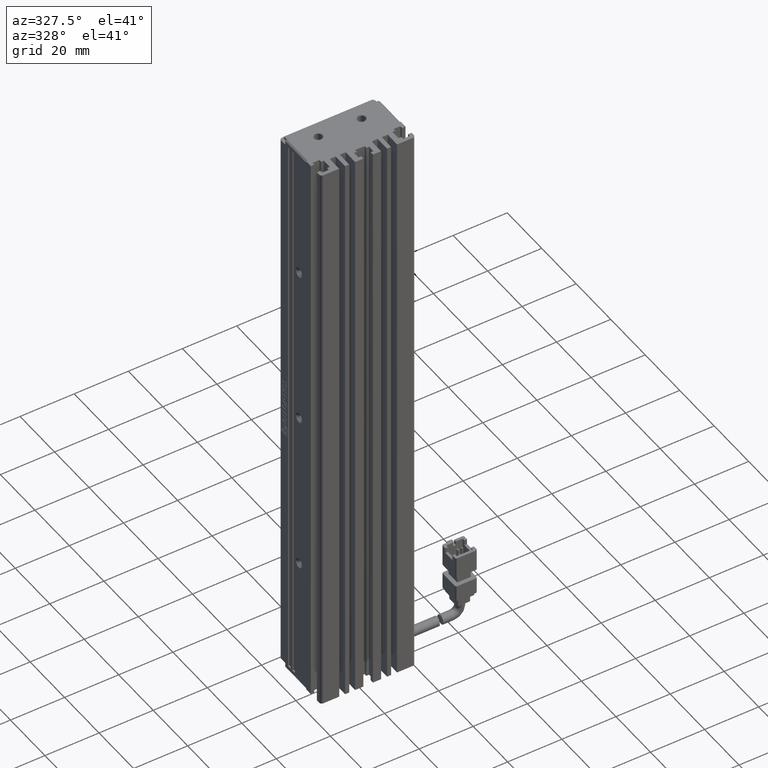
[diagram: clean part render]
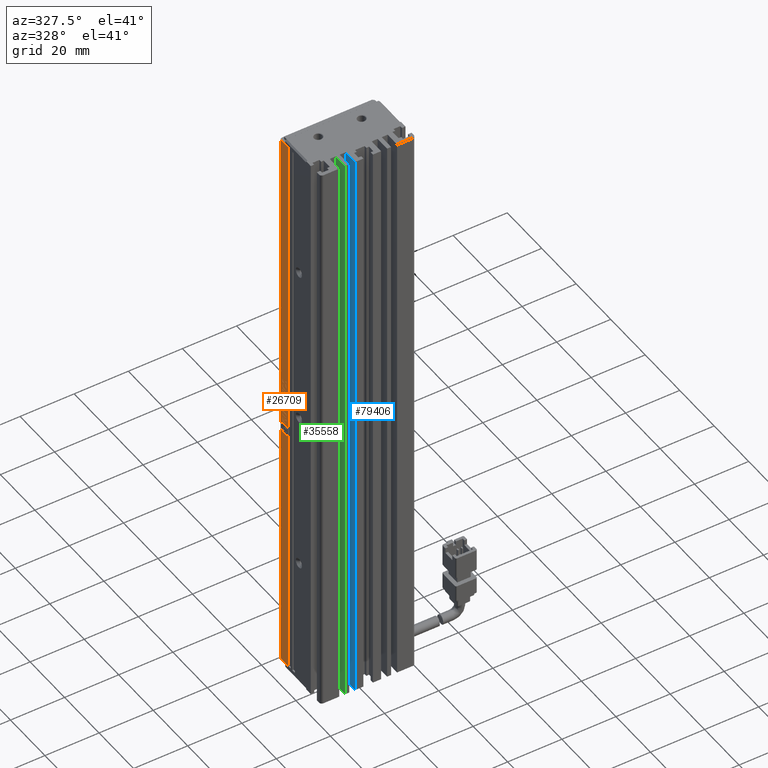
[diagram: same view with three faces highlighted in distinct colors, each labeled with its STEP entity id]
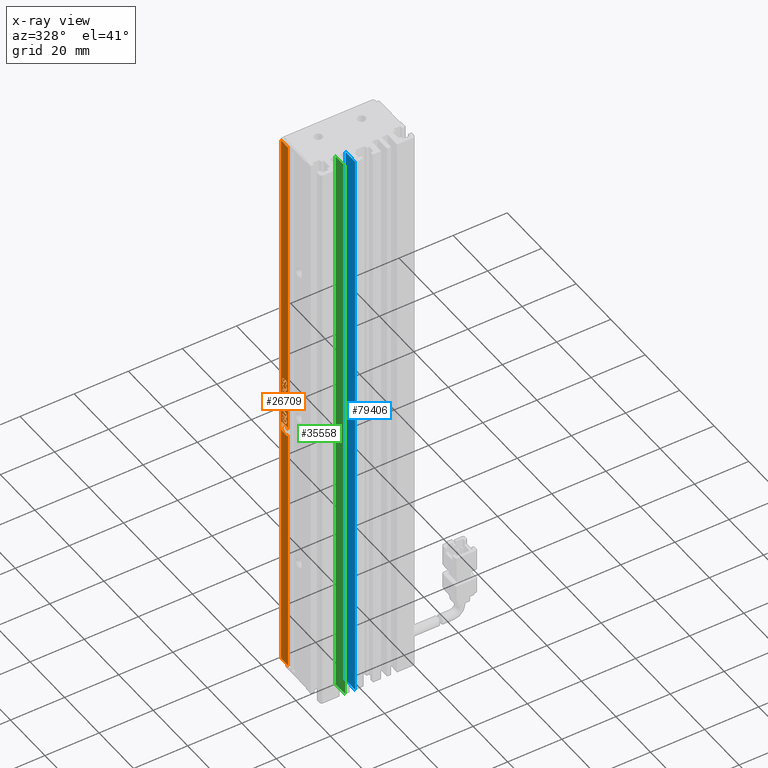
[diagram: x-ray of the same camera — body ghosted, the three highlighted faces saturated]
A machine part, auxiliary view with three faces highlighted in distinct colors.
The next image is the same camera in x-ray (body ghosted, the three faces saturated) — at least one of them is partly hidden behind the body in this view.
Their STEP definitions:

[orange] entity #26709 — the highlighted planar face has unit normal (-1, 0, 0).
#43 = VECTOR ( 'NONE', #69789, 1000.000000000000000 ) ;
#59 = EDGE_CURVE ( 'NONE', #26377, #69647, #48499, .T. ) ;
#383 = CARTESIAN_POINT ( 'NONE',  ( 23.42537974683542100, 32.80993697706704600, -117.4060518617324200 ) ) ;
#629 = CARTESIAN_POINT ( 'NONE',  ( 23.42537974683542100, 33.90313621518245000, -124.4911980244126100 ) ) ;
#646 = CARTESIAN_POINT ( 'NONE',  ( 23.42537974683542100, 30.69365790729960300, -122.0197619753073300 ) ) ;
#749 = CARTESIAN_POINT ( 'NONE',  ( 23.42537974683542500, 34.99073232304837700, -8.000000000000007100 ) ) ;
#1005 = DIRECTION ( 'NONE',  ( 0.0000000000000000000, 0.0000000000000000000, 1.000000000000000000 ) ) ;
#1037 = B_SPLINE_CURVE_WITH_KNOTS ( 'NONE', 3,
 ( #38617, #66763, #24871, #45687 ),
 .UNSPECIFIED., .F., .F.,
 ( 4, 4 ),
 ( 3.000000000000000000, 4.000000000000000000 ),
 .UNSPECIFIED. ) ;
#1072 = ORIENTED_EDGE ( 'NONE', *, *, #58591, .F. ) ;
#1168 = CARTESIAN_POINT ( 'NONE',  ( 23.42537974683542100, 33.24016953520655400, -118.5485613263079200 ) ) ;
#1196 = CARTESIAN_POINT ( 'NONE',  ( 23.42537974683542100, 31.98435558171818700, -109.5125283355021300 ) ) ;
#1227 = CARTESIAN_POINT ( 'NONE',  ( 23.42537974683542100, 32.79830907009025500, -109.4764277405858100 ) ) ;
#1234 = LINE ( 'NONE', #72954, #27483 ) ;
#1447 = EDGE_CURVE ( 'NONE', #73920, #46582, #73014, .T. ) ;
#1837 = CARTESIAN_POINT ( 'NONE',  ( 23.42537974683542100, 32.92621604683451200, -122.0523471564863300 ) ) ;
#1927 = CARTESIAN_POINT ( 'NONE',  ( 23.42537974683542100, 32.92621604683451200, -122.0523471564863300 ) ) ;
#1933 = CARTESIAN_POINT ( 'NONE',  ( 23.42537974683542100, 31.03086720962521700, -119.6008193035928400 ) ) ;
#2055 = ORIENTED_EDGE ( 'NONE', *, *, #59, .F. ) ;
#2252 = VERTEX_POINT ( 'NONE', #15879 ) ;
#2388 = ORIENTED_EDGE ( 'NONE', *, *, #70909, .F. ) ;
#2472 = CARTESIAN_POINT ( 'NONE',  ( 23.42537974683542100, 30.83319279102058600, -107.6288074052695300 ) ) ;
#2511 = DIRECTION ( 'NONE',  ( -0.0000000000000000000, -1.000000000000000000, -0.0000000000000000000 ) ) ;
#2625 = CARTESIAN_POINT ( 'NONE',  ( 23.42537974683542100, 33.24016953520655400, -113.7865277946691400 ) ) ;
#2776 = VERTEX_POINT ( 'NONE', #22461 ) ;
#2849 = CARTESIAN_POINT ( 'NONE',  ( 23.42537974683542100, 32.44947186078796600, -107.3646781462105400 ) ) ;
#2855 = CARTESIAN_POINT ( 'NONE',  ( 23.42537974683542100, 30.69365790729960300, -106.1064304447502200 ) ) ;
#2967 = DIRECTION ( 'NONE',  ( -0.0000000000000000000, 1.000000000000000000, -0.0000000000000000000 ) ) ;
#3023 = VERTEX_POINT ( 'NONE', #83650 ) ;
#3045 = CARTESIAN_POINT ( 'NONE',  ( 23.42537974683542100, 31.78668116311355600, -106.1280637600558500 ) ) ;
#3171 = ORIENTED_EDGE ( 'NONE', *, *, #63918, .F. ) ;
#3211 = B_SPLINE_CURVE_WITH_KNOTS ( 'NONE', 3,
 ( #15456, #29602, #64448, #78826 ),
 .UNSPECIFIED., .F., .F.,
 ( 4, 4 ),
 ( 11.00000000000000000, 12.00000000000000000 ),
 .UNSPECIFIED. ) ;
#3354 = ORIENTED_EDGE ( 'NONE', *, *, #46418, .F. ) ;
#3392 = VECTOR ( 'NONE', #69041, 1000.000000000000000 ) ;
#3616 = CARTESIAN_POINT ( 'NONE',  ( 23.42537974683542100, 30.69365790729960300, -121.4774418022407300 ) ) ;
#3701 = CARTESIAN_POINT ( 'NONE',  ( 23.42537974683542100, 33.27505325613680000, -108.3952352040796800 ) ) ;
#3837 = ORIENTED_EDGE ( 'NONE', *, *, #31578, .F. ) ;
#3907 = VERTEX_POINT ( 'NONE', #24247 ) ;
#4017 = CARTESIAN_POINT ( 'NONE',  ( 23.42537974683542100, 31.97272767474145600, -117.4421524566485100 ) ) ;
#4373 = CARTESIAN_POINT ( 'NONE',  ( 23.42537974683542100, 30.17471088155887000, -124.4911980244126100 ) ) ;
#4424 = B_SPLINE_CURVE_WITH_KNOTS ( 'NONE', 3,
 ( #72009, #44115, #30086, #1933 ),
 .UNSPECIFIED., .F., .F.,
 ( 4, 4 ),
 ( 4.000000000000000000, 5.000000000000000000 ),
 .UNSPECIFIED. ) ;
#4548 = CARTESIAN_POINT ( 'NONE',  ( 23.42537974683542100, 31.58900674450892200, -107.4189642468053600 ) ) ;
#4603 = CARTESIAN_POINT ( 'NONE',  ( 23.42537974683542100, 31.97272767474145600, -115.1207625161401800 ) ) ;
#4752 = DIRECTION ( 'NONE',  ( -0.0000000000000000000, -1.000000000000000000, -0.0000000000000000000 ) ) ;
#4998 = EDGE_CURVE ( 'NONE', #62750, #57622, #4424, .T. ) ;
#5161 = CARTESIAN_POINT ( 'NONE',  ( 23.42537974683542100, 31.01525066013898500, -107.9433693306345800 ) ) ;
#5482 = AXIS2_PLACEMENT_3D ( 'NONE', #42587, #35615, #1005 ) ;
#5519 = ORIENTED_EDGE ( 'NONE', *, *, #7941, .F. ) ;
#5719 = FACE_BOUND ( 'NONE', #51348, .T. ) ;
#5852 = CARTESIAN_POINT ( 'NONE',  ( 23.42537974683542100, 31.79830907009028400, -120.6530096767676200 ) ) ;
#5943 = CARTESIAN_POINT ( 'NONE',  ( 23.42537974683542100, 31.02305893488210100, -121.7342022132737500 ) ) ;
#5961 = EDGE_LOOP ( 'NONE', ( #11075, #75421, #47572, #41546 ) ) ;
#6158 = EDGE_CURVE ( 'NONE', #48704, #26746, #39579, .T. ) ;
#6180 = VECTOR ( 'NONE', #48422, 1000.000000000000000 ) ;
#6209 = EDGE_CURVE ( 'NONE', #73861, #80208, #47598, .T. ) ;
#6281 = B_SPLINE_CURVE_WITH_KNOTS ( 'NONE', 3,
 ( #74990, #38796, #32705, #11572 ),
 .UNSPECIFIED., .F., .F.,
 ( 4, 4 ),
 ( 13.00000000000000000, 14.00000000000000000 ),
 .UNSPECIFIED. ) ;
#6292 = CARTESIAN_POINT ( 'NONE',  ( 23.42537974683542100, 32.44947186078796600, -107.8745483463186600 ) ) ;
#6429 = VECTOR ( 'NONE', #47813, 1000.000000000000000 ) ;
#6817 = VECTOR ( 'NONE', #47979, 1000.000000000000000 ) ;
#7012 = CARTESIAN_POINT ( 'NONE',  ( 23.42537974683542100, 31.40296023288102100, -105.6833639223057000 ) ) ;
#7150 = CARTESIAN_POINT ( 'NONE',  ( 23.42537974683542100, 33.24016953520655400, -120.1323228190066000 ) ) ;
#7223 = EDGE_CURVE ( 'NONE', #23359, #55443, #26135, .T. ) ;
#7255 = DIRECTION ( 'NONE',  ( -0.0000000000000000000, -1.000000000000000000, -0.0000000000000000000 ) ) ;
#7261 = LINE ( 'NONE', #46330, #56377 ) ;
#7604 = VERTEX_POINT ( 'NONE', #70491 ) ;
#7647 = LINE ( 'NONE', #78228, #21781 ) ;
#7779 = EDGE_CURVE ( 'NONE', #53387, #74927, #18453, .T. ) ;
#7941 = EDGE_CURVE ( 'NONE', #36956, #62260, #58871, .T. ) ;
#8097 = EDGE_CURVE ( 'NONE', #26793, #23359, #3211, .T. ) ;
#8307 = CARTESIAN_POINT ( 'NONE',  ( 23.42537974683542100, 32.54249511660192000, -121.0001567833117200 ) ) ;
#8536 = CARTESIAN_POINT ( 'NONE',  ( 23.42537974683542100, 31.98435558171818700, -122.6923552689798100 ) ) ;
#8830 = CARTESIAN_POINT ( 'NONE',  ( 23.42537974683542100, 30.17471088155887000, -126.8601066235564600 ) ) ;
#8908 = LINE ( 'NONE', #18324, #29761 ) ;
#8929 = ORIENTED_EDGE ( 'NONE', *, *, #44752, .T. ) ;
#9046 = ORIENTED_EDGE ( 'NONE', *, *, #65578, .F. ) ;
#9052 = ORIENTED_EDGE ( 'NONE', *, *, #44742, .F. ) ;
#9125 = CARTESIAN_POINT ( 'NONE',  ( 23.42537974683542100, 32.57339019502266800, -122.6706543495638600 ) ) ;
#9247 = VERTEX_POINT ( 'NONE', #18913 ) ;
#9388 = CARTESIAN_POINT ( 'NONE',  ( 23.42537974683542100, 32.49598348869494700, -105.2168955610293000 ) ) ;
#9417 = CARTESIAN_POINT ( 'NONE',  ( 23.42537974683542100, 31.98435558171818700, -109.5125283355021300 ) ) ;
#9481 = EDGE_CURVE ( 'NONE', #88037, #9247, #45454, .T. ) ;
#9557 = ORIENTED_EDGE ( 'NONE', *, *, #1447, .F. ) ;
#9608 = ORIENTED_EDGE ( 'NONE', *, *, #51436, .F. ) ;
#9709 = ORIENTED_EDGE ( 'NONE', *, *, #72241, .F. ) ;
#9919 = CARTESIAN_POINT ( 'NONE',  ( 23.42537974683542100, 31.83319279102058600, -122.1716684112184600 ) ) ;
#9978 = ORIENTED_EDGE ( 'NONE', *, *, #66589, .F. ) ;
#10016 = FACE_BOUND ( 'NONE', #87984, .T. ) ;
#10065 = CARTESIAN_POINT ( 'NONE',  ( 23.42537974683542100, 33.27505325613680000, -122.0523471564863300 ) ) ;
#10095 = CARTESIAN_POINT ( 'NONE',  ( 23.42537974683542100, 33.24016953520655400, -110.6298890710347700 ) ) ;
#10218 = CARTESIAN_POINT ( 'NONE',  ( 23.42537974683542100, 30.74016953520663300, -111.9207219536739200 ) ) ;
#10263 = CARTESIAN_POINT ( 'NONE',  ( 23.42537974683542100, 32.80594833455759800, -106.5259139493473600 ) ) ;
#10264 = VECTOR ( 'NONE', #53163, 1000.000000000000000 ) ;
#10299 = CARTESIAN_POINT ( 'NONE',  ( 23.42537974683542100, 32.17040209334609100, -107.1008193035928900 ) ) ;
#10371 = CARTESIAN_POINT ( 'NONE',  ( 23.42537974683542100, 31.15877418636935700, -123.1842427757400300 ) ) ;
#10479 = CARTESIAN_POINT ( 'NONE',  ( 23.42537974683542100, 32.76724498139368100, -105.7955191413429900 ) ) ;
#10917 = CARTESIAN_POINT ( 'NONE',  ( 23.42537974683542100, 31.03086720962521700, -108.2542130299314400 ) ) ;
#11075 = ORIENTED_EDGE ( 'NONE', *, *, #50306, .F. ) ;
#11268 = CARTESIAN_POINT ( 'NONE',  ( 23.42537974683542100, 31.61226255846238300, -114.2855137330142100 ) ) ;
#11491 = CARTESIAN_POINT ( 'NONE',  ( 23.42537974683542100, 32.44947186078796600, -107.8745483463186600 ) ) ;
#11572 = CARTESIAN_POINT ( 'NONE',  ( 23.42537974683542100, 30.69365790729960300, -106.1064304447502200 ) ) ;
#11591 = CARTESIAN_POINT ( 'NONE',  ( 23.42537974683542100, 30.72472199599617700, -122.7863925864485300 ) ) ;
#11712 = LINE ( 'NONE', #749, #75279 ) ;
#11779 = VERTEX_POINT ( 'NONE', #4373 ) ;
#11877 = CARTESIAN_POINT ( 'NONE',  ( 23.42537974683542100, 31.22073335348673200, -106.8368928568648800 ) ) ;
#12258 = CARTESIAN_POINT ( 'NONE',  ( 23.42537974683542100, 31.96109976776472500, -108.9810248200882500 ) ) ;
#12398 = CARTESIAN_POINT ( 'NONE',  ( 23.42537974683542100, 31.38734368339478900, -122.6706543495638600 ) ) ;
#12572 = CARTESIAN_POINT ( 'NONE',  ( 23.42537974683542100, 31.06176228804590500, -108.7243996172759200 ) ) ;
#12994 = CARTESIAN_POINT ( 'NONE',  ( 23.42537974683542100, 31.03086720962521700, -122.0089453176544900 ) ) ;
#13139 = CARTESIAN_POINT ( 'NONE',  ( 23.42537974683542100, 32.22854162822984800, -106.1064304447502200 ) ) ;
#13276 = EDGE_CURVE ( 'NONE', #53294, #75751, #88304, .T. ) ;
#13296 = CARTESIAN_POINT ( 'NONE',  ( 23.42537974683542100, 30.74016953520663300, -114.7953163290120800 ) ) ;
#13381 = CARTESIAN_POINT ( 'NONE',  ( 23.42537974683542100, 31.59664600897626500, -113.2080394225761200 ) ) ;
#13445 = DIRECTION ( 'NONE',  ( -0.0000000000000000000, -0.0000000000000000000, 1.000000000000000000 ) ) ;
#13504 = LINE ( 'NONE', #66719, #78161 ) ;
#13533 = CARTESIAN_POINT ( 'NONE',  ( 23.42537974683542100, 31.11226255846243700, -107.4189642468053600 ) ) ;
#13559 = CARTESIAN_POINT ( 'NONE',  ( 23.42537974683542100, 32.89133232590420900, -112.6908679785522100 ) ) ;
#13637 = VERTEX_POINT ( 'NONE', #31666 ) ;
#13711 = CARTESIAN_POINT ( 'NONE',  ( 23.42537974683542100, 32.89133232590420900, -110.6298890710347700 ) ) ;
#13720 = CARTESIAN_POINT ( 'NONE',  ( 23.42537974683542100, 33.90313621518245000, -126.8601066235564600 ) ) ;
#13801 = CARTESIAN_POINT ( 'NONE',  ( 23.42537974683542100, 31.97272767474145600, -117.4421524566485100 ) ) ;
#13890 = ORIENTED_EDGE ( 'NONE', *, *, #27111, .F. ) ;
#13905 = EDGE_CURVE ( 'NONE', #73614, #21013, #64866, .T. ) ;
#13941 = CARTESIAN_POINT ( 'NONE',  ( 23.42537974683542100, 31.03086720962521700, -118.5124607313916000 ) ) ;
#14025 = CARTESIAN_POINT ( 'NONE',  ( 23.42537974683542100, 33.67213886008198600, -123.8114702828415700 ) ) ;
#14104 = CARTESIAN_POINT ( 'NONE',  ( 23.42537974683542100, 33.23618089269710700, -122.7972768482116200 ) ) ;
#14272 = CARTESIAN_POINT ( 'NONE',  ( 23.42537974683542100, 33.53607099403129900, -127.5398955222772300 ) ) ;
#14277 = VERTEX_POINT ( 'NONE', #25959 ) ;
#14334 = VERTEX_POINT ( 'NONE', #32999 ) ;
#14388 = EDGE_CURVE ( 'NONE', #84444, #17451, #61454, .T. ) ;
#14402 = CARTESIAN_POINT ( 'NONE',  ( 23.42537974683542100, 31.99598348869491800, -123.2130421267405600 ) ) ;
#14446 = B_SPLINE_CURVE_WITH_KNOTS ( 'NONE', 3,
 ( #31269, #65503, #44403, #3701 ),
 .UNSPECIFIED., .F., .F.,
 ( 4, 4 ),
 ( 9.000000000000000000, 10.00000000000000000 ),
 .UNSPECIFIED. ) ;
#14593 = ORIENTED_EDGE ( 'NONE', *, *, #51586, .F. ) ;
#14618 = ORIENTED_EDGE ( 'NONE', *, *, #63149, .F. ) ;
#14639 = CARTESIAN_POINT ( 'NONE',  ( 23.42537974683542100, 33.22338127548393100, -123.8114702828415700 ) ) ;
#14693 = ORIENTED_EDGE ( 'NONE', *, *, #7223, .F. ) ;
#14747 = LINE ( 'NONE', #23373, #54196 ) ;
#14960 = VERTEX_POINT ( 'NONE', #22416 ) ;
#15195 = CARTESIAN_POINT ( 'NONE',  ( 23.42537974683542100, 32.49598348869494700, -105.2168955610293000 ) ) ;
#15376 = EDGE_CURVE ( 'NONE', #75751, #49370, #81848, .T. ) ;
#15421 = DIRECTION ( 'NONE',  ( -0.0000000000000000000, 1.000000000000000000, -0.0000000000000000000 ) ) ;
#15441 = ORIENTED_EDGE ( 'NONE', *, *, #75783, .F. ) ;
#15456 = CARTESIAN_POINT ( 'NONE',  ( 23.42537974683542100, 31.43784395381121000, -105.1517928027817600 ) ) ;
#15475 = CARTESIAN_POINT ( 'NONE',  ( 23.42537974683542100, 33.90313621518245000, -126.8601066235564600 ) ) ;
#15487 = CARTESIAN_POINT ( 'NONE',  ( 23.42537974683542100, 33.25943670665062500, -105.6219793901260700 ) ) ;
#15640 = B_SPLINE_CURVE_WITH_KNOTS ( 'NONE', 3,
 ( #4548, #33001, #5161, #10917 ),
 .UNSPECIFIED., .F., .F.,
 ( 4, 4 ),
 ( 4.000000000000000000, 5.000000000000000000 ),
 .UNSPECIFIED. ) ;
#15879 = CARTESIAN_POINT ( 'NONE',  ( 23.42537974683542100, 32.89133232590420900, -111.9207219536739200 ) ) ;
#15959 = EDGE_LOOP ( 'NONE', ( #33292, #25504, #61764, #74820, #54804, #78979, #35697, #56653, #86771, #9978 ) ) ;
#16223 = CARTESIAN_POINT ( 'NONE',  ( 23.42537974683542100, 33.03850647409242200, -107.0284153014295300 ) ) ;
#16592 = FACE_OUTER_BOUND ( 'NONE', #87471, .T. ) ;
#16951 = CARTESIAN_POINT ( 'NONE',  ( 23.42537974683542100, 33.03086720962519300, -121.1592968590282600 ) ) ;
#17245 = CARTESIAN_POINT ( 'NONE',  ( 23.42537974683542100, 33.27505325613680000, -121.5099593793096300 ) ) ;
#17451 = VERTEX_POINT ( 'NONE', #35252 ) ;
#17520 = VERTEX_POINT ( 'NONE', #52529 ) ;
#17575 = ORIENTED_EDGE ( 'NONE', *, *, #39025, .F. ) ;
#17685 = CARTESIAN_POINT ( 'NONE',  ( 23.42537974683542100, 32.39515195813788000, -106.5332151932629200 ) ) ;
#17882 = EDGE_CURVE ( 'NONE', #21936, #11779, #79793, .T. ) ;
#18200 = EDGE_CURVE ( 'NONE', #47268, #54828, #67762, .T. ) ;
#18297 = CARTESIAN_POINT ( 'NONE',  ( 23.42537974683542100, 32.58900674450889300, -106.5186127054316600 ) ) ;
#18324 = CARTESIAN_POINT ( 'NONE',  ( 23.42537974683542100, 31.83319279102058600, -121.4774418022407300 ) ) ;
#18453 = B_SPLINE_CURVE_WITH_KNOTS ( 'NONE', 3,
 ( #32449, #10371, #11591, #60538 ),
 .UNSPECIFIED., .F., .F.,
 ( 4, 4 ),
 ( 11.00000000000000000, 12.00000000000000000 ),
 .UNSPECIFIED. ) ;
#18691 = CARTESIAN_POINT ( 'NONE',  ( 23.42537974683542100, 32.91458813985772700, -106.1606489412347300 ) ) ;
#18837 = CARTESIAN_POINT ( 'NONE',  ( 23.42537974683542100, 30.74016953520663300, -117.0190859342040100 ) ) ;
#18913 = CARTESIAN_POINT ( 'NONE',  ( 23.42537974683542100, 33.24016953520655400, -118.5485613263079200 ) ) ;
#19045 = CARTESIAN_POINT ( 'NONE',  ( 23.42537974683542100, 31.41458813985775200, -121.4774418022407300 ) ) ;
#19091 = ORIENTED_EDGE ( 'NONE', *, *, #22212, .F. ) ;
#19153 = VERTEX_POINT ( 'NONE', #36158 ) ;
#19395 = CARTESIAN_POINT ( 'NONE',  ( 23.42537974683542100, 33.99073232304837700, -222.0000000000000000 ) ) ;
#19495 = ORIENTED_EDGE ( 'NONE', *, *, #20138, .F. ) ;
#19634 = CARTESIAN_POINT ( 'NONE',  ( 23.42537974683542100, 32.18203000032293200, -120.9892725215486100 ) ) ;
#20138 = EDGE_CURVE ( 'NONE', #47454, #3023, #80004, .T. ) ;
#20232 = EDGE_CURVE ( 'NONE', #39869, #63623, #45021, .T. ) ;
#20345 = CARTESIAN_POINT ( 'NONE',  ( 23.42537974683542100, 31.98435558171818700, -109.5125283355021300 ) ) ;
#20395 = CARTESIAN_POINT ( 'NONE',  ( 23.42537974683542100, 31.01923930264848700, -105.8569036735225200 ) ) ;
#20578 = DIRECTION ( 'NONE',  ( -0.0000000000000000000, -0.0000000000000000000, 1.000000000000000000 ) ) ;
#20706 = CARTESIAN_POINT ( 'NONE',  ( 23.42537974683542100, 33.08744251897440600, -127.5398955222772300 ) ) ;
#20865 = B_SPLINE_CURVE_WITH_KNOTS ( 'NONE', 3,
 ( #48561, #84319, #13941, #34818 ),
 .UNSPECIFIED., .F., .F.,
 ( 4, 4 ),
 ( 8.000000000000000000, 9.000000000000000000 ),
 .UNSPECIFIED. ) ;
#20915 = CARTESIAN_POINT ( 'NONE',  ( 23.42537974683542100, 30.74016953520663300, -109.8162736032143300 ) ) ;
#20930 = VERTEX_POINT ( 'NONE', #39764 ) ;
#21013 = VERTEX_POINT ( 'NONE', #5852 ) ;
#21081 = CARTESIAN_POINT ( 'NONE',  ( 23.42537974683542100, 32.89133232590420900, -110.6298890710347700 ) ) ;
#21084 = ORIENTED_EDGE ( 'NONE', *, *, #32834, .F. ) ;
#21310 = CARTESIAN_POINT ( 'NONE',  ( 23.42537974683542100, 31.60063465148565200, -107.1044023214401300 ) ) ;
#21781 = VECTOR ( 'NONE', #35417, 1000.000000000000000 ) ;
#21936 = VERTEX_POINT ( 'NONE', #8830 ) ;
#21948 = DIRECTION ( 'NONE',  ( -0.0000000000000000000, 1.000000000000000000, -0.0000000000000000000 ) ) ;
#22212 = EDGE_CURVE ( 'NONE', #25942, #53294, #73629, .T. ) ;
#22416 = CARTESIAN_POINT ( 'NONE',  ( 23.42537974683542100, 31.25179744218331000, -120.9892725215486100 ) ) ;
#22461 = CARTESIAN_POINT ( 'NONE',  ( 23.42537974683542100, 29.99073232304837300, -222.0000000000000000 ) ) ;
#22833 = CARTESIAN_POINT ( 'NONE',  ( 23.42537974683542100, 31.67040209334614400, -119.0692481840687800 ) ) ;
#22852 = CARTESIAN_POINT ( 'NONE',  ( 23.42537974683542100, 33.27505325613680000, -108.3952352040796800 ) ) ;
#22931 = ORIENTED_EDGE ( 'NONE', *, *, #76100, .F. ) ;
#22964 = CARTESIAN_POINT ( 'NONE',  ( 23.42537974683542100, 33.26724498139368100, -106.7355542954803700 ) ) ;
#23035 = ORIENTED_EDGE ( 'NONE', *, *, #13276, .F. ) ;
#23129 = EDGE_CURVE ( 'NONE', #46234, #48704, #55812, .T. ) ;
#23359 = VERTEX_POINT ( 'NONE', #13139 ) ;
#23373 = CARTESIAN_POINT ( 'NONE',  ( 23.42537974683542100, 33.24016953520655400, -109.8162736032143300 ) ) ;
#23435 = EDGE_CURVE ( 'NONE', #17520, #82937, #51282, .T. ) ;
#23484 = CARTESIAN_POINT ( 'NONE',  ( 23.42537974683542100, 30.87970441892750600, -121.1340129217649100 ) ) ;
#23603 = CARTESIAN_POINT ( 'NONE',  ( 23.42537974683542100, 31.40296023288102100, -105.6833639223057000 ) ) ;
#23960 = VERTEX_POINT ( 'NONE', #32215 ) ;
#24076 = CARTESIAN_POINT ( 'NONE',  ( 23.42537974683542100, 33.27505325613680000, -116.2814574863944000 ) ) ;
#24100 = EDGE_CURVE ( 'NONE', #53843, #14277, #51419, .T. ) ;
#24240 = LINE ( 'NONE', #63005, #56053 ) ;
#24247 = CARTESIAN_POINT ( 'NONE',  ( 23.42537974683542100, 33.24016953520655400, -110.6298890710347700 ) ) ;
#24435 = ORIENTED_EDGE ( 'NONE', *, *, #51169, .F. ) ;
#24542 = VECTOR ( 'NONE', #4752, 1000.000000000000000 ) ;
#24811 = CARTESIAN_POINT ( 'NONE',  ( 23.42537974683542100, 30.17471088155887000, -124.0426035368832300 ) ) ;
#24871 = CARTESIAN_POINT ( 'NONE',  ( 23.42537974683542100, 33.22854162822982000, -115.5583639223057300 ) ) ;
#25136 = CARTESIAN_POINT ( 'NONE',  ( 23.42537974683542100, 31.99598348869491800, -123.2130421267405600 ) ) ;
#25470 = CARTESIAN_POINT ( 'NONE',  ( 23.42537974683542100, 30.69365790729960300, -116.2814574863944000 ) ) ;
#25504 = ORIENTED_EDGE ( 'NONE', *, *, #13905, .F. ) ;
#25942 = VERTEX_POINT ( 'NONE', #3045 ) ;
#25959 = CARTESIAN_POINT ( 'NONE',  ( 23.42537974683542100, 30.74016953520663300, -111.4000350959131700 ) ) ;
#26135 = B_SPLINE_CURVE_WITH_KNOTS ( 'NONE', 3,
 ( #45850, #38492, #17685, #18297 ),
 .UNSPECIFIED., .F., .F.,
 ( 4, 4 ),
 ( 10.00000000000000000, 11.00000000000000000 ),
 .UNSPECIFIED. ) ;
#26377 = VERTEX_POINT ( 'NONE', #36008 ) ;
#26486 = VERTEX_POINT ( 'NONE', #33109 ) ;
#26507 = FACE_BOUND ( 'NONE', #56222, .T. ) ;
#26687 = ORIENTED_EDGE ( 'NONE', *, *, #64195, .F. ) ;
#26709 = ADVANCED_FACE ( 'NONE', ( #10016, #26507, #86689, #42932, #81275, #5719, #35327, #46241, #30898, #16592 ), #28536, .T. ) ;
#26746 = VERTEX_POINT ( 'NONE', #10065 ) ;
#26769 = ORIENTED_EDGE ( 'NONE', *, *, #43811, .F. ) ;
#26793 = VERTEX_POINT ( 'NONE', #57820 ) ;
#26928 = CARTESIAN_POINT ( 'NONE',  ( 23.42537974683542100, 30.74016953520663300, -114.7953163290120800 ) ) ;
#27111 = EDGE_CURVE ( 'NONE', #46582, #39869, #30358, .T. ) ;
#27121 = CARTESIAN_POINT ( 'NONE',  ( 23.42537974683542100, 31.16259381860297100, -109.4764277405858100 ) ) ;
#27171 = CARTESIAN_POINT ( 'NONE',  ( 23.42537974683542100, 31.40296023288102100, -105.6833639223057000 ) ) ;
#27366 = B_SPLINE_CURVE_WITH_KNOTS ( 'NONE', 3,
 ( #51043, #50743, #65144, #73749 ),
 .UNSPECIFIED., .F., .F.,
 ( 4, 4 ),
 ( 3.000000000000000000, 4.000000000000000000 ),
 .UNSPECIFIED. ) ;
#27483 = VECTOR ( 'NONE', #72643, 1000.000000000000000 ) ;
#27742 = CARTESIAN_POINT ( 'NONE',  ( 23.42537974683542100, 33.24016953520655400, -113.2152730623816000 ) ) ;
#27828 = DIRECTION ( 'NONE',  ( -0.0000000000000000000, -0.0000000000000000000, -1.000000000000000000 ) ) ;
#28153 = DIRECTION ( 'NONE',  ( -0.0000000000000000000, -0.0000000000000000000, -1.000000000000000000 ) ) ;
#28469 = VERTEX_POINT ( 'NONE', #63028 ) ;
#28473 = CARTESIAN_POINT ( 'NONE',  ( 23.42537974683542100, 33.24016953520655400, -119.0692481840687800 ) ) ;
#28536 = PLANE ( 'NONE',  #5482 ) ;
#28571 = B_SPLINE_CURVE_WITH_KNOTS ( 'NONE', 3,
 ( #76187, #48564, #69739, #34223 ),
 .UNSPECIFIED., .F., .F.,
 ( 4, 4 ),
 ( 2.000000000000000000, 3.000000000000000000 ),
 .UNSPECIFIED. ) ;
#28825 = CARTESIAN_POINT ( 'NONE',  ( 23.42537974683542100, 30.69365790729960300, -108.3735342846637300 ) ) ;
#29015 = ORIENTED_EDGE ( 'NONE', *, *, #41349, .F. ) ;
#29137 = VECTOR ( 'NONE', #20578, 1000.000000000000000 ) ;
#29316 = EDGE_CURVE ( 'NONE', #66779, #30446, #47267, .T. ) ;
#29383 = CARTESIAN_POINT ( 'NONE',  ( 23.42537974683542100, 33.24016953520655400, -120.1323228190066000 ) ) ;
#29602 = CARTESIAN_POINT ( 'NONE',  ( 23.42537974683542100, 31.83319279102058600, -105.1517928027817600 ) ) ;
#29682 = CARTESIAN_POINT ( 'NONE',  ( 23.42537974683542100, 31.83319279102058600, -122.1716684112184600 ) ) ;
#29732 = ORIENTED_EDGE ( 'NONE', *, *, #62092, .F. ) ;
#29761 = VECTOR ( 'NONE', #46816, 1000.000000000000000 ) ;
#30054 = CARTESIAN_POINT ( 'NONE',  ( 23.42537974683542100, 31.96109976776472500, -108.9810248200882500 ) ) ;
#30086 = CARTESIAN_POINT ( 'NONE',  ( 23.42537974683542100, 31.01525066013898500, -119.2319712776327400 ) ) ;
#30113 = ORIENTED_EDGE ( 'NONE', *, *, #63025, .F. ) ;
#30348 = CARTESIAN_POINT ( 'NONE',  ( 23.42537974683542100, 32.49598348869494700, -105.7158814993742800 ) ) ;
#30358 = LINE ( 'NONE', #35504, #84012 ) ;
#30446 = VERTEX_POINT ( 'NONE', #1927 ) ;
#30669 = CARTESIAN_POINT ( 'NONE',  ( 23.42537974683542100, 32.58900674450889300, -107.0501162208454200 ) ) ;
#30689 = EDGE_CURVE ( 'NONE', #11779, #28469, #54304, .T. ) ;
#30898 = FACE_BOUND ( 'NONE', #36252, .T. ) ;
#31196 = CARTESIAN_POINT ( 'NONE',  ( 23.42537974683542100, 31.25179744218331000, -120.9892725215486100 ) ) ;
#31269 = CARTESIAN_POINT ( 'NONE',  ( 23.42537974683542100, 32.44947186078796600, -107.3646781462105400 ) ) ;
#31455 = DIRECTION ( 'NONE',  ( 0.0000000000000000000, 1.000000000000000000, 0.0000000000000000000 ) ) ;
#31578 = EDGE_CURVE ( 'NONE', #81281, #36470, #87657, .T. ) ;
#31666 = CARTESIAN_POINT ( 'NONE',  ( 23.42537974683542100, 33.22338127548393100, -123.8114702828415700 ) ) ;
#32037 = CARTESIAN_POINT ( 'NONE',  ( 23.42537974683542100, 33.90313621518245000, -124.4911980244126100 ) ) ;
#32140 = LINE ( 'NONE', #63819, #47510 ) ;
#32215 = CARTESIAN_POINT ( 'NONE',  ( 23.42537974683542100, 33.27505325613680000, -108.3952352040796800 ) ) ;
#32366 = CARTESIAN_POINT ( 'NONE',  ( 23.42537974683542100, 31.03086720962521700, -108.2542130299314400 ) ) ;
#32413 = CARTESIAN_POINT ( 'NONE',  ( 23.42537974683542100, 30.67040209334614400, -120.3275634896392500 ) ) ;
#32449 = CARTESIAN_POINT ( 'NONE',  ( 23.42537974683542100, 31.99598348869491800, -123.2130421267405600 ) ) ;
#32637 = CARTESIAN_POINT ( 'NONE',  ( 23.42537974683542100, 31.97272767474145600, -115.1207625161401800 ) ) ;
#32693 = ORIENTED_EDGE ( 'NONE', *, *, #34573, .F. ) ;
#32705 = CARTESIAN_POINT ( 'NONE',  ( 23.42537974683542100, 30.67040209334614400, -106.5259139493473600 ) ) ;
#32786 = DIRECTION ( 'NONE',  ( -0.0000000000000000000, -0.0000000000000000000, 1.000000000000000000 ) ) ;
#32821 = CARTESIAN_POINT ( 'NONE',  ( 23.42537974683542100, 31.61226255846238300, -114.2855137330142100 ) ) ;
#32834 = EDGE_CURVE ( 'NONE', #63623, #87068, #50461, .T. ) ;
#32954 = LINE ( 'NONE', #13720, #43 ) ;
#32999 = CARTESIAN_POINT ( 'NONE',  ( 23.42537974683542100, 33.24016953520655400, -112.6908679785522100 ) ) ;
#33001 = CARTESIAN_POINT ( 'NONE',  ( 23.42537974683542100, 31.20129717176688900, -107.6649080001855200 ) ) ;
#33014 = ORIENTED_EDGE ( 'NONE', *, *, #75143, .F. ) ;
#33109 = CARTESIAN_POINT ( 'NONE',  ( 23.42537974683542100, 33.24016953520655400, -109.8162736032143300 ) ) ;
#33292 = ORIENTED_EDGE ( 'NONE', *, *, #76859, .F. ) ;
#33324 = ORIENTED_EDGE ( 'NONE', *, *, #17882, .F. ) ;
#33362 = CARTESIAN_POINT ( 'NONE',  ( 23.42537974683542100, 32.58900674450889300, -106.5186127054316600 ) ) ;
#33388 = ORIENTED_EDGE ( 'NONE', *, *, #15376, .F. ) ;
#33614 = ORIENTED_EDGE ( 'NONE', *, *, #61287, .F. ) ;
#33953 = DIRECTION ( 'NONE',  ( -0.0000000000000000000, -0.0000000000000000000, 1.000000000000000000 ) ) ;
#34109 = ORIENTED_EDGE ( 'NONE', *, *, #57247, .F. ) ;
#34223 = CARTESIAN_POINT ( 'NONE',  ( 23.42537974683542100, 32.91458813985772700, -108.3627176270111100 ) ) ;
#34246 = CARTESIAN_POINT ( 'NONE',  ( 23.42537974683542100, 31.73236126046352000, -105.8316197362589900 ) ) ;
#34247 = ORIENTED_EDGE ( 'NONE', *, *, #49248, .F. ) ;
#34315 = ORIENTED_EDGE ( 'NONE', *, *, #6209, .F. ) ;
#34456 = B_SPLINE_CURVE_WITH_KNOTS ( 'NONE', 3,
 ( #82790, #41447, #41163, #6292 ),
 .UNSPECIFIED., .F., .F.,
 ( 4, 4 ),
 ( 1.000000000000000000, 2.000000000000000000 ),
 .UNSPECIFIED. ) ;
#34563 = CARTESIAN_POINT ( 'NONE',  ( 23.42537974683542100, 32.91458813985772700, -106.1606489412347300 ) ) ;
#34569 = CARTESIAN_POINT ( 'NONE',  ( 23.42537974683542100, 30.74016953520663300, -110.3261438033223400 ) ) ;
#34573 = EDGE_CURVE ( 'NONE', #23960, #47454, #50245, .T. ) ;
#34727 = LINE ( 'NONE', #13711, #88333 ) ;
#34787 = CARTESIAN_POINT ( 'NONE',  ( 23.42537974683542100, 30.73253027073929300, -109.0967630569730200 ) ) ;
#34818 = CARTESIAN_POINT ( 'NONE',  ( 23.42537974683542100, 31.82156488404385500, -118.5485613263079200 ) ) ;
#34935 = EDGE_CURVE ( 'NONE', #36470, #20930, #28571, .T. ) ;
#35021 = B_SPLINE_CURVE_WITH_KNOTS ( 'NONE', 3,
 ( #51551, #10263, #80056, #52458 ),
 .UNSPECIFIED., .F., .F.,
 ( 4, 4 ),
 ( 9.000000000000000000, 10.00000000000000000 ),
 .UNSPECIFIED. ) ;
#35134 = CARTESIAN_POINT ( 'NONE',  ( 23.42537974683542100, 31.78668116311355600, -106.1280637600558500 ) ) ;
#35155 = CARTESIAN_POINT ( 'NONE',  ( 23.42537974683542100, 33.90313621518245000, -127.3088302206237800 ) ) ;
#35252 = CARTESIAN_POINT ( 'NONE',  ( 23.42537974683542100, 30.74016953520663300, -110.3261438033223400 ) ) ;
#35327 = FACE_BOUND ( 'NONE', #5961, .T. ) ;
#35417 = DIRECTION ( 'NONE',  ( -0.0000000000000000000, -0.0000000000000000000, 1.000000000000000000 ) ) ;
#35504 = CARTESIAN_POINT ( 'NONE',  ( 23.42537974683542100, 33.24016953520655400, -114.7953163290120800 ) ) ;
#35615 = DIRECTION ( 'NONE',  ( -1.000000000000000000, 0.0000000000000000000, 0.0000000000000000000 ) ) ;
#35623 = VECTOR ( 'NONE', #27828, 1000.000000000000000 ) ;
#35697 = ORIENTED_EDGE ( 'NONE', *, *, #45993, .F. ) ;
#35934 = ORIENTED_EDGE ( 'NONE', *, *, #7779, .F. ) ;
#36008 = CARTESIAN_POINT ( 'NONE',  ( 23.42537974683542100, 32.18203000032293200, -122.1716684112184600 ) ) ;
#36158 = CARTESIAN_POINT ( 'NONE',  ( 23.42537974683542100, 31.15877418636935700, -107.1044023214401300 ) ) ;
#36183 = EDGE_CURVE ( 'NONE', #46811, #25942, #77273, .T. ) ;
#36195 = B_SPLINE_CURVE_WITH_KNOTS ( 'NONE', 3,
 ( #15195, #78585, #15487, #36931 ),
 .UNSPECIFIED., .F., .F.,
 ( 4, 4 ),
 ( 6.000000000000000000, 7.000000000000000000 ),
 .UNSPECIFIED. ) ;
#36252 = EDGE_LOOP ( 'NONE', ( #65415, #56047, #45051, #56828, #3354, #14618, #34315, #9046, #2055, #49838, #82846, #58562, #35934, #88614 ) ) ;
#36308 = VECTOR ( 'NONE', #87352, 1000.000000000000000 ) ;
#36470 = VERTEX_POINT ( 'NONE', #30054 ) ;
#36868 = EDGE_CURVE ( 'NONE', #68797, #85319, #24240, .T. ) ;
#36931 = CARTESIAN_POINT ( 'NONE',  ( 23.42537974683542100, 33.27505325613680000, -106.1714655988877400 ) ) ;
#36956 = VERTEX_POINT ( 'NONE', #15475 ) ;
#37567 = LINE ( 'NONE', #68191, #59446 ) ;
#37804 = CARTESIAN_POINT ( 'NONE',  ( 23.42537974683542100, 31.58900674450892200, -107.4189642468053600 ) ) ;
#37957 = DIRECTION ( 'NONE',  ( -0.0000000000000000000, -0.0000000000000000000, 1.000000000000000000 ) ) ;
#38123 = CARTESIAN_POINT ( 'NONE',  ( 23.42537974683542100, 31.83319279102058600, -121.4774418022407300 ) ) ;
#38131 = VECTOR ( 'NONE', #21948, 1000.000000000000000 ) ;
#38246 = CARTESIAN_POINT ( 'NONE',  ( 23.42537974683542100, 30.40581016524445700, -123.8114702828415700 ) ) ;
#38486 = EDGE_CURVE ( 'NONE', #30446, #46234, #42055, .T. ) ;
#38492 = CARTESIAN_POINT ( 'NONE',  ( 23.42537974683542100, 32.27505325613680000, -106.3957084328518500 ) ) ;
#38557 = CARTESIAN_POINT ( 'NONE',  ( 23.42537974683542100, 30.17471088155887000, -124.4911980244126100 ) ) ;
#38617 = CARTESIAN_POINT ( 'NONE',  ( 23.42537974683542100, 31.97272767474145600, -115.1207625161401800 ) ) ;
#38796 = CARTESIAN_POINT ( 'NONE',  ( 23.42537974683542100, 30.82555352655324300, -106.8585937762808100 ) ) ;
#39025 = EDGE_CURVE ( 'NONE', #2252, #53843, #66914, .T. ) ;
#39056 = CARTESIAN_POINT ( 'NONE',  ( 23.42537974683542100, 32.42621604683445500, -112.9403947497799000 ) ) ;
#39339 = CARTESIAN_POINT ( 'NONE',  ( 23.42537974683542100, 31.97272767474145600, -117.4421524566485100 ) ) ;
#39579 = B_SPLINE_CURVE_WITH_KNOTS ( 'NONE', 3,
 ( #52417, #16951, #17245, #59490 ),
 .UNSPECIFIED., .F., .F.,
 ( 4, 4 ),
 ( 13.00000000000000000, 14.00000000000000000 ),
 .UNSPECIFIED. ) ;
#39764 = CARTESIAN_POINT ( 'NONE',  ( 23.42537974683542100, 32.91458813985772700, -108.3627176270111100 ) ) ;
#39852 = DIRECTION ( 'NONE',  ( -0.0000000000000000000, 1.000000000000000000, -0.0000000000000000000 ) ) ;
#39869 = VERTEX_POINT ( 'NONE', #43742 ) ;
#40042 = LINE ( 'NONE', #40350, #43313 ) ;
#40046 = ORIENTED_EDGE ( 'NONE', *, *, #34935, .F. ) ;
#40350 = CARTESIAN_POINT ( 'NONE',  ( 23.42537974683542100, 32.49598348869494700, -105.2168955610293000 ) ) ;
#40749 = ORIENTED_EDGE ( 'NONE', *, *, #60304, .F. ) ;
#40839 = CARTESIAN_POINT ( 'NONE',  ( 23.42537974683542100, 31.01923930264848700, -106.1823498606506700 ) ) ;
#40867 = LINE ( 'NONE', #42718, #58382 ) ;
#40921 = CARTESIAN_POINT ( 'NONE',  ( 23.42537974683542100, 31.03086720962521700, -122.0089453176544900 ) ) ;
#40990 = VERTEX_POINT ( 'NONE', #2849 ) ;
#41029 = CARTESIAN_POINT ( 'NONE',  ( 23.42537974683542100, 33.24016953520655400, -120.6530096767676200 ) ) ;
#41057 = VERTEX_POINT ( 'NONE', #58494 ) ;
#41163 = CARTESIAN_POINT ( 'NONE',  ( 23.42537974683542100, 32.75943670665056800, -107.9469523484821100 ) ) ;
#41349 = EDGE_CURVE ( 'NONE', #62260, #7604, #13504, .T. ) ;
#41441 = B_SPLINE_CURVE_WITH_KNOTS ( 'NONE', 3,
 ( #14639, #14025, #41595, #629 ),
 .UNSPECIFIED., .F., .F.,
 ( 4, 4 ),
 ( 3.000000000000000000, 4.000000000000000000 ),
 .UNSPECIFIED. ) ;
#41447 = CARTESIAN_POINT ( 'NONE',  ( 23.42537974683542100, 32.91458813985772700, -108.1096078379357700 ) ) ;
#41481 = CARTESIAN_POINT ( 'NONE',  ( 23.42537974683542100, 30.69365790729960300, -108.3735342846637300 ) ) ;
#41522 = VECTOR ( 'NONE', #13445, 1000.000000000000000 ) ;
#41546 = ORIENTED_EDGE ( 'NONE', *, *, #18200, .F. ) ;
#41547 = CARTESIAN_POINT ( 'NONE',  ( 23.42537974683542100, 32.42621604683445500, -112.9403947497799000 ) ) ;
#41578 = VERTEX_POINT ( 'NONE', #21081 ) ;
#41595 = CARTESIAN_POINT ( 'NONE',  ( 23.42537974683542100, 33.90313621518245000, -124.0426035368832300 ) ) ;
#41605 = CARTESIAN_POINT ( 'NONE',  ( 23.42537974683542100, 30.17471088155887000, -124.4911980244126100 ) ) ;
#41648 = CARTESIAN_POINT ( 'NONE',  ( 23.42537974683542100, 30.69365790729960300, -107.9469523484821100 ) ) ;
#42055 = B_SPLINE_CURVE_WITH_KNOTS ( 'NONE', 3,
 ( #56575, #77418, #85298, #50103 ),
 .UNSPECIFIED., .F., .F.,
 ( 4, 4 ),
 ( 1.000000000000000000, 2.000000000000000000 ),
 .UNSPECIFIED. ) ;
#42285 = CARTESIAN_POINT ( 'NONE',  ( 23.42537974683542100, 33.24398916744022600, -117.0190859342040100 ) ) ;
#42516 = VECTOR ( 'NONE', #31455, 1000.000000000000000 ) ;
#42572 = CARTESIAN_POINT ( 'NONE',  ( 23.42537974683542100, 30.17471088155887000, -126.8601066235564600 ) ) ;
#42587 = CARTESIAN_POINT ( 'NONE',  ( 23.42537974683542100, 7.083797468354437600, -6.000000000000005300 ) ) ;
#42617 = CARTESIAN_POINT ( 'NONE',  ( 23.42537974683542100, 33.99073232304837700, -8.000000000000007100 ) ) ;
#42625 = B_SPLINE_CURVE_WITH_KNOTS ( 'NONE', 3,
 ( #28825, #41648, #2472, #43750 ),
 .UNSPECIFIED., .F., .F.,
 ( 4, 4 ),
 ( 6.000000000000000000, 7.000000000000000000 ),
 .UNSPECIFIED. ) ;
#42718 = CARTESIAN_POINT ( 'NONE',  ( 23.42537974683542100, 29.99073232304837300, -6.000000000000005300 ) ) ;
#42833 = CARTESIAN_POINT ( 'NONE',  ( 23.42537974683542100, 32.88734368339481800, -122.4574309855830900 ) ) ;
#42839 = ORIENTED_EDGE ( 'NONE', *, *, #14388, .F. ) ;
#42911 = LINE ( 'NONE', #85512, #51621 ) ;
#42932 = FACE_BOUND ( 'NONE', #71467, .T. ) ;
#43089 = VERTEX_POINT ( 'NONE', #55987 ) ;
#43256 = B_SPLINE_CURVE_WITH_KNOTS ( 'NONE', 3,
 ( #83932, #63104, #5943, #77232 ),
 .UNSPECIFIED., .F., .F.,
 ( 4, 4 ),
 ( 4.000000000000000000, 5.000000000000000000 ),
 .UNSPECIFIED. ) ;
#43313 = VECTOR ( 'NONE', #33953, 1000.000000000000000 ) ;
#43654 = VERTEX_POINT ( 'NONE', #34563 ) ;
#43742 = CARTESIAN_POINT ( 'NONE',  ( 23.42537974683542100, 33.24016953520655400, -114.7953163290120800 ) ) ;
#43750 = CARTESIAN_POINT ( 'NONE',  ( 23.42537974683542100, 31.11226255846243700, -107.4189642468053600 ) ) ;
#43811 = EDGE_CURVE ( 'NONE', #66067, #40990, #90367, .T. ) ;
#44115 = CARTESIAN_POINT ( 'NONE',  ( 23.42537974683542100, 31.22854162822984800, -119.0548485085685100 ) ) ;
#44403 = CARTESIAN_POINT ( 'NONE',  ( 23.42537974683542100, 33.26724498139368100, -107.8240480759021800 ) ) ;
#44615 = EDGE_CURVE ( 'NONE', #14277, #41057, #61763, .T. ) ;
#44742 = EDGE_CURVE ( 'NONE', #49370, #19153, #37567, .T. ) ;
#44752 = EDGE_CURVE ( 'NONE', #2776, #49042, #40867, .T. ) ;
#44856 = CARTESIAN_POINT ( 'NONE',  ( 23.42537974683542100, 32.58900674450889300, -107.0501162208454200 ) ) ;
#45021 = LINE ( 'NONE', #13296, #48302 ) ;
#45051 = ORIENTED_EDGE ( 'NONE', *, *, #38486, .F. ) ;
#45160 = EDGE_CURVE ( 'NONE', #50599, #73169, #7261, .T. ) ;
#45367 = VERTEX_POINT ( 'NONE', #13559 ) ;
#45454 = LINE ( 'NONE', #1168, #69683 ) ;
#45513 = DIRECTION ( 'NONE',  ( -0.0000000000000000000, -0.0000000000000000000, -1.000000000000000000 ) ) ;
#45687 = CARTESIAN_POINT ( 'NONE',  ( 23.42537974683542100, 33.27505325613680000, -116.2814574863944000 ) ) ;
#45850 = CARTESIAN_POINT ( 'NONE',  ( 23.42537974683542100, 32.22854162822984800, -106.1064304447502200 ) ) ;
#45993 = EDGE_CURVE ( 'NONE', #76559, #62750, #73729, .T. ) ;
#46117 = CARTESIAN_POINT ( 'NONE',  ( 23.42537974683542100, 32.89133232590420900, -111.4000350959131700 ) ) ;
#46173 = CARTESIAN_POINT ( 'NONE',  ( 23.42537974683542100, 30.74016953520663300, -111.9207219536739200 ) ) ;
#46224 = B_SPLINE_CURVE_WITH_KNOTS ( 'NONE', 3,
 ( #56039, #14104, #78099, #14402 ),
 .UNSPECIFIED., .F., .F.,
 ( 4, 4 ),
 ( 12.00000000000000000, 13.00000000000000000 ),
 .UNSPECIFIED. ) ;
#46234 = VERTEX_POINT ( 'NONE', #73362 ) ;
#46241 = FACE_BOUND ( 'NONE', #15959, .T. ) ;
#46330 = CARTESIAN_POINT ( 'NONE',  ( 23.42537974683542100, 31.61226255846238300, -113.7865277946691400 ) ) ;
#46398 = VERTEX_POINT ( 'NONE', #32637 ) ;
#46418 = EDGE_CURVE ( 'NONE', #84870, #66779, #84868, .T. ) ;
#46440 = CARTESIAN_POINT ( 'NONE',  ( 23.42537974683542100, 31.03850647409244700, -120.6747105961835600 ) ) ;
#46513 = EDGE_LOOP ( 'NONE', ( #33014, #9052, #33388, #23035, #19091, #49261, #22931, #9709, #40749, #33614, #24435, #14693, #59690, #59368 ) ) ;
#46582 = VERTEX_POINT ( 'NONE', #2625 ) ;
#46798 = LINE ( 'NONE', #67100, #61014 ) ;
#46811 = VERTEX_POINT ( 'NONE', #89477 ) ;
#46816 = DIRECTION ( 'NONE',  ( -0.0000000000000000000, -0.0000000000000000000, 1.000000000000000000 ) ) ;
#47062 = EDGE_CURVE ( 'NONE', #40990, #23960, #14446, .T. ) ;
#47268 = VERTEX_POINT ( 'NONE', #4017 ) ;
#47267 = B_SPLINE_CURVE_WITH_KNOTS ( 'NONE', 3,
 ( #8536, #9125, #42833, #1837 ),
 .UNSPECIFIED., .F., .F.,
 ( 4, 4 ),
 ( 2.000000000000000000, 3.000000000000000000 ),
 .UNSPECIFIED. ) ;
#47454 = VERTEX_POINT ( 'NONE', #1196 ) ;
#47510 = VECTOR ( 'NONE', #71213, 1000.000000000000000 ) ;
#47572 = ORIENTED_EDGE ( 'NONE', *, *, #71948, .F. ) ;
#47598 = LINE ( 'NONE', #82134, #24542 ) ;
#47678 = ORIENTED_EDGE ( 'NONE', *, *, #20232, .F. ) ;
#47813 = DIRECTION ( 'NONE',  ( -0.0000000000000000000, 1.000000000000000000, -0.0000000000000000000 ) ) ;
#47979 = DIRECTION ( 'NONE',  ( -0.0000000000000000000, -1.000000000000000000, -0.0000000000000000000 ) ) ;
#48103 = LINE ( 'NONE', #32821, #86427 ) ;
#48302 = VECTOR ( 'NONE', #7255, 1000.000000000000000 ) ;
#48422 = DIRECTION ( 'NONE',  ( -0.0000000000000000000, 1.000000000000000000, -0.0000000000000000000 ) ) ;
#48499 = LINE ( 'NONE', #9919, #62730 ) ;
#48561 = CARTESIAN_POINT ( 'NONE',  ( 23.42537974683542100, 30.69365790729960300, -119.6116359612456400 ) ) ;
#48564 = CARTESIAN_POINT ( 'NONE',  ( 23.42537974683542100, 32.58119846976578100, -108.9738587843933000 ) ) ;
#48580 = CARTESIAN_POINT ( 'NONE',  ( 23.42537974683542100, 31.60445428371926700, -105.6833639223057000 ) ) ;
#48704 = VERTEX_POINT ( 'NONE', #8307 ) ;
#48902 = DIRECTION ( 'NONE',  ( -0.0000000000000000000, -0.0000000000000000000, 1.000000000000000000 ) ) ;
#49042 = VERTEX_POINT ( 'NONE', #51315 ) ;
#49185 = CARTESIAN_POINT ( 'NONE',  ( 23.42537974683542100, 33.24016953520655400, -119.0692481840687800 ) ) ;
#49248 = EDGE_CURVE ( 'NONE', #64846, #81281, #15640, .T. ) ;
#49261 = ORIENTED_EDGE ( 'NONE', *, *, #36183, .F. ) ;
#49370 = VERTEX_POINT ( 'NONE', #21310 ) ;
#49416 = VECTOR ( 'NONE', #37957, 1000.000000000000000 ) ;
#49600 = EDGE_CURVE ( 'NONE', #80306, #64846, #57505, .T. ) ;
#49657 = B_SPLINE_CURVE_WITH_KNOTS ( 'NONE', 3,
 ( #85875, #61576, #54532, #42572 ),
 .UNSPECIFIED., .F., .F.,
 ( 4, 4 ),
 ( 7.000000000000000000, 8.000000000000000000 ),
 .UNSPECIFIED. ) ;
#49838 = ORIENTED_EDGE ( 'NONE', *, *, #85128, .F. ) ;
#50103 = CARTESIAN_POINT ( 'NONE',  ( 23.42537974683542100, 32.54249511660192000, -121.5424769563782100 ) ) ;
#50245 = B_SPLINE_CURVE_WITH_KNOTS ( 'NONE', 3,
 ( #22852, #57758, #1227, #9417 ),
 .UNSPECIFIED., .F., .F.,
 ( 4, 4 ),
 ( 8.000000000000000000, 9.000000000000000000 ),
 .UNSPECIFIED. ) ;
#50306 = EDGE_CURVE ( 'NONE', #69773, #47268, #55498, .T. ) ;
#50461 = LINE ( 'NONE', #58467, #49416 ) ;
#50599 = VERTEX_POINT ( 'NONE', #11268 ) ;
#50743 = CARTESIAN_POINT ( 'NONE',  ( 23.42537974683542100, 31.03086720962521700, -119.9552000499422600 ) ) ;
#50914 = CARTESIAN_POINT ( 'NONE',  ( 23.42537974683542100, 31.98435558171818700, -122.6923552689798100 ) ) ;
#50995 = CARTESIAN_POINT ( 'NONE',  ( 23.42537974683542100, 33.08744251897440600, -127.5398955222772300 ) ) ;
#51043 = CARTESIAN_POINT ( 'NONE',  ( 23.42537974683542100, 31.03086720962521700, -119.6008193035928400 ) ) ;
#51169 = EDGE_CURVE ( 'NONE', #55443, #43654, #35021, .T. ) ;
#51282 = LINE ( 'NONE', #29383, #38131 ) ;
#51315 = CARTESIAN_POINT ( 'NONE',  ( 23.42537974683542100, 29.99073232304837300, -8.000000000000007100 ) ) ;
#51323 = LINE ( 'NONE', #57171, #42516 ) ;
#51348 = EDGE_LOOP ( 'NONE', ( #81112, #60752, #70355, #21084, #47678, #13890, #9557 ) ) ;
#51419 = LINE ( 'NONE', #82049, #81059 ) ;
#51436 = EDGE_CURVE ( 'NONE', #17451, #63811, #55982, .T. ) ;
#51551 = CARTESIAN_POINT ( 'NONE',  ( 23.42537974683542100, 32.58900674450889300, -106.5186127054316600 ) ) ;
#51586 = EDGE_CURVE ( 'NONE', #3907, #14334, #1234, .T. ) ;
#51621 = VECTOR ( 'NONE', #78224, 1000.000000000000000 ) ;
#51691 = CARTESIAN_POINT ( 'NONE',  ( 23.42537974683542100, 31.79830907009028400, -120.6530096767676200 ) ) ;
#51708 = VECTOR ( 'NONE', #88890, 1000.000000000000000 ) ;
#51922 = CARTESIAN_POINT ( 'NONE',  ( 23.42537974683542100, 31.78668116311355600, -106.1280637600558500 ) ) ;
#51977 = EDGE_CURVE ( 'NONE', #87068, #50599, #48103, .T. ) ;
#52377 = DIRECTION ( 'NONE',  ( -0.0000000000000000000, -0.0000000000000000000, -1.000000000000000000 ) ) ;
#52417 = CARTESIAN_POINT ( 'NONE',  ( 23.42537974683542100, 32.54249511660192000, -121.0001567833117200 ) ) ;
#52458 = CARTESIAN_POINT ( 'NONE',  ( 23.42537974683542100, 32.91458813985772700, -106.1606489412347300 ) ) ;
#52529 = CARTESIAN_POINT ( 'NONE',  ( 23.42537974683542100, 31.67040209334614400, -120.1323228190066000 ) ) ;
#53163 = DIRECTION ( 'NONE',  ( -0.0000000000000000000, 1.000000000000000000, -0.0000000000000000000 ) ) ;
#53234 = VERTEX_POINT ( 'NONE', #78466 ) ;
#53294 = VERTEX_POINT ( 'NONE', #23603 ) ;
#53387 = VERTEX_POINT ( 'NONE', #25136 ) ;
#53588 = CARTESIAN_POINT ( 'NONE',  ( 23.42537974683542100, 32.90677986511466500, -105.9437073511863000 ) ) ;
#53730 = ORIENTED_EDGE ( 'NONE', *, *, #81853, .F. ) ;
#53843 = VERTEX_POINT ( 'NONE', #46173 ) ;
#54196 = VECTOR ( 'NONE', #15421, 1000.000000000000000 ) ;
#54304 = B_SPLINE_CURVE_WITH_KNOTS ( 'NONE', 3,
 ( #38557, #24811, #38246, #67350 ),
 .UNSPECIFIED., .F., .F.,
 ( 4, 4 ),
 ( 5.000000000000000000, 6.000000000000000000 ),
 .UNSPECIFIED. ) ;
#54532 = CARTESIAN_POINT ( 'NONE',  ( 23.42537974683542100, 30.17471088155887000, -127.3088302206237800 ) ) ;
#54681 = CARTESIAN_POINT ( 'NONE',  ( 23.42537974683542100, 31.01923930264848700, -106.1823498606506700 ) ) ;
#54804 = ORIENTED_EDGE ( 'NONE', *, *, #56465, .F. ) ;
#54828 = VERTEX_POINT ( 'NONE', #25470 ) ;
#55147 = EDGE_CURVE ( 'NONE', #3023, #80306, #42625, .T. ) ;
#55335 = LINE ( 'NONE', #49185, #35623 ) ;
#55443 = VERTEX_POINT ( 'NONE', #33362 ) ;
#55498 = B_SPLINE_CURVE_WITH_KNOTS ( 'NONE', 3,
 ( #83286, #42285, #383, #13801 ),
 .UNSPECIFIED., .F., .F.,
 ( 4, 4 ),
 ( 2.000000000000000000, 3.000000000000000000 ),
 .UNSPECIFIED. ) ;
#55550 = CARTESIAN_POINT ( 'NONE',  ( 23.42537974683542100, 32.42621604683445500, -112.9403947497799000 ) ) ;
#55812 = LINE ( 'NONE', #68309, #70122 ) ;
#55982 = LINE ( 'NONE', #20915, #3392 ) ;
#55987 = CARTESIAN_POINT ( 'NONE',  ( 23.42537974683542100, 30.69365790729960300, -106.1064304447502200 ) ) ;
#56039 = CARTESIAN_POINT ( 'NONE',  ( 23.42537974683542100, 33.27505325613680000, -122.0523471564863300 ) ) ;
#56047 = ORIENTED_EDGE ( 'NONE', *, *, #23129, .F. ) ;
#56053 = VECTOR ( 'NONE', #70096, 1000.000000000000000 ) ;
#56144 = ORIENTED_EDGE ( 'NONE', *, *, #49600, .F. ) ;
#56222 = EDGE_LOOP ( 'NONE', ( #87895, #26769, #15441, #40046, #3837, #34247, #56144, #85973, #19495, #32693 ) ) ;
#56377 = VECTOR ( 'NONE', #81841, 1000.000000000000000 ) ;
#56465 = EDGE_CURVE ( 'NONE', #57622, #17520, #27366, .T. ) ;
#56575 = CARTESIAN_POINT ( 'NONE',  ( 23.42537974683542100, 32.92621604683451200, -122.0523471564863300 ) ) ;
#56653 = ORIENTED_EDGE ( 'NONE', *, *, #60589, .F. ) ;
#56828 = ORIENTED_EDGE ( 'NONE', *, *, #29316, .F. ) ;
#57171 = CARTESIAN_POINT ( 'NONE',  ( 23.42537974683542500, 34.99073232304837700, -222.0000000000000000 ) ) ;
#57247 = EDGE_CURVE ( 'NONE', #14334, #45367, #79146, .T. ) ;
#57505 = LINE ( 'NONE', #37804, #58628 ) ;
#57588 = DIRECTION ( 'NONE',  ( 0.0000000000000000000, 1.000000000000000000, 0.0000000000000000000 ) ) ;
#57622 = VERTEX_POINT ( 'NONE', #72920 ) ;
#57758 = CARTESIAN_POINT ( 'NONE',  ( 23.42537974683542100, 33.22854162822982000, -109.1040643008887100 ) ) ;
#57820 = CARTESIAN_POINT ( 'NONE',  ( 23.42537974683542100, 31.43784395381121000, -105.1517928027817600 ) ) ;
#57920 = CARTESIAN_POINT ( 'NONE',  ( 23.42537974683542100, 31.67040209334614400, -119.0692481840687800 ) ) ;
#58123 = CARTESIAN_POINT ( 'NONE',  ( 23.42537974683542100, 31.82156488404385500, -118.5485613263079200 ) ) ;
#58382 = VECTOR ( 'NONE', #69437, 1000.000000000000000 ) ;
#58467 = CARTESIAN_POINT ( 'NONE',  ( 23.42537974683542100, 30.74016953520663300, -114.2855137330142100 ) ) ;
#58494 = CARTESIAN_POINT ( 'NONE',  ( 23.42537974683542100, 32.89133232590420900, -111.4000350959131700 ) ) ;
#58495 = CARTESIAN_POINT ( 'NONE',  ( 23.42537974683542100, 33.27505325613680000, -106.1714655988877400 ) ) ;
#58562 = ORIENTED_EDGE ( 'NONE', *, *, #69774, .F. ) ;
#58591 = EDGE_CURVE ( 'NONE', #45367, #2252, #7647, .T. ) ;
#58628 = VECTOR ( 'NONE', #2967, 1000.000000000000000 ) ;
#58795 = CARTESIAN_POINT ( 'NONE',  ( 23.42537974683542100, 30.69365790729960300, -105.4628393144094200 ) ) ;
#58871 = B_SPLINE_CURVE_WITH_KNOTS ( 'NONE', 3,
 ( #70075, #35155, #14272, #20706 ),
 .UNSPECIFIED., .F., .F.,
 ( 4, 4 ),
 ( 1.000000000000000000, 2.000000000000000000 ),
 .UNSPECIFIED. ) ;
#59056 = B_SPLINE_CURVE_WITH_KNOTS ( 'NONE', 3,
 ( #69467, #13381, #61755, #41547 ),
 .UNSPECIFIED., .F., .F.,
 ( 4, 4 ),
 ( 6.000000000000000000, 7.000000000000000000 ),
 .UNSPECIFIED. ) ;
#59125 = ORIENTED_EDGE ( 'NONE', *, *, #68335, .F. ) ;
#59340 = CARTESIAN_POINT ( 'NONE',  ( 23.42537974683542100, 30.74016953520663300, -115.5438290385848500 ) ) ;
#59368 = ORIENTED_EDGE ( 'NONE', *, *, #67366, .F. ) ;
#59446 = VECTOR ( 'NONE', #75559, 1000.000000000000000 ) ;
#59490 = CARTESIAN_POINT ( 'NONE',  ( 23.42537974683542100, 33.27505325613680000, -122.0523471564863300 ) ) ;
#59690 = ORIENTED_EDGE ( 'NONE', *, *, #8097, .F. ) ;
#60227 = CARTESIAN_POINT ( 'NONE',  ( 23.42537974683542100, 30.69365790729960300, -116.2814574863944000 ) ) ;
#60304 = EDGE_CURVE ( 'NONE', #71890, #88626, #40042, .T. ) ;
#60538 = CARTESIAN_POINT ( 'NONE',  ( 23.42537974683542100, 30.69365790729960300, -122.0197619753073300 ) ) ;
#60589 = EDGE_CURVE ( 'NONE', #9247, #76559, #55335, .T. ) ;
#60752 = ORIENTED_EDGE ( 'NONE', *, *, #45160, .F. ) ;
#61014 = VECTOR ( 'NONE', #52377, 1000.000000000000000 ) ;
#61095 = CARTESIAN_POINT ( 'NONE',  ( 23.42537974683542100, 31.79830907009028400, -120.6530096767676200 ) ) ;
#61287 = EDGE_CURVE ( 'NONE', #43654, #71890, #69650, .T. ) ;
#61392 = EDGE_CURVE ( 'NONE', #46398, #69773, #1037, .T. ) ;
#61445 = CARTESIAN_POINT ( 'NONE',  ( 23.42537974683542100, 31.02687856711571600, -106.5294293630845700 ) ) ;
#61454 = LINE ( 'NONE', #34569, #6817 ) ;
#61521 = CARTESIAN_POINT ( 'NONE',  ( 23.42537974683542100, 31.37189614418444700, -108.9665575404777900 ) ) ;
#61576 = CARTESIAN_POINT ( 'NONE',  ( 23.42537974683542100, 30.40581016524445700, -127.5398955222772300 ) ) ;
#61755 = CARTESIAN_POINT ( 'NONE',  ( 23.42537974683542100, 31.86807651195077500, -112.9259950742798700 ) ) ;
#61763 = LINE ( 'NONE', #46117, #10264 ) ;
#61764 = ORIENTED_EDGE ( 'NONE', *, *, #73968, .F. ) ;
#62092 = EDGE_CURVE ( 'NONE', #13637, #66074, #41441, .T. ) ;
#62260 = VERTEX_POINT ( 'NONE', #50995 ) ;
#62318 = EDGE_CURVE ( 'NONE', #2776, #85319, #51323, .T. ) ;
#62335 = ORIENTED_EDGE ( 'NONE', *, *, #44615, .F. ) ;
#62348 = CARTESIAN_POINT ( 'NONE',  ( 23.42537974683542100, 33.27505325613680000, -106.1714655988877400 ) ) ;
#62582 = CARTESIAN_POINT ( 'NONE',  ( 23.42537974683542100, 32.96873903223198700, -112.9332963181955400 ) ) ;
#62730 = VECTOR ( 'NONE', #78830, 1000.000000000000000 ) ;
#62750 = VERTEX_POINT ( 'NONE', #57920 ) ;
#62813 = ORIENTED_EDGE ( 'NONE', *, *, #62318, .F. ) ;
#63005 = CARTESIAN_POINT ( 'NONE',  ( 23.42537974683542100, 33.99073232304837700, -6.000000000000005300 ) ) ;
#63025 = EDGE_CURVE ( 'NONE', #26486, #84444, #46798, .T. ) ;
#63028 = CARTESIAN_POINT ( 'NONE',  ( 23.42537974683542100, 30.85447261649664700, -123.8114702828415700 ) ) ;
#63104 = CARTESIAN_POINT ( 'NONE',  ( 23.42537974683542100, 31.15096591162624400, -121.5570794442092900 ) ) ;
#63146 = B_SPLINE_CURVE_WITH_KNOTS ( 'NONE', 3,
 ( #73424, #3616, #23484, #31196 ),
 .UNSPECIFIED., .F., .F.,
 ( 4, 4 ),
 ( 10.00000000000000000, 11.00000000000000000 ),
 .UNSPECIFIED. ) ;
#63149 = EDGE_CURVE ( 'NONE', #80208, #84870, #43256, .T. ) ;
#63623 = VERTEX_POINT ( 'NONE', #26928 ) ;
#63811 = VERTEX_POINT ( 'NONE', #85582 ) ;
#63819 = CARTESIAN_POINT ( 'NONE',  ( 23.42537974683542100, 32.18203000032293200, -120.9892725215486100 ) ) ;
#63918 = EDGE_CURVE ( 'NONE', #7604, #21936, #49657, .T. ) ;
#64195 = EDGE_CURVE ( 'NONE', #41057, #41578, #34727, .T. ) ;
#64405 = LINE ( 'NONE', #68932, #6429 ) ;
#64448 = CARTESIAN_POINT ( 'NONE',  ( 23.42537974683542100, 32.09664600897620800, -105.4701405583252700 ) ) ;
#64846 = VERTEX_POINT ( 'NONE', #79072 ) ;
#64866 = LINE ( 'NONE', #51691, #71519 ) ;
#65077 = VERTEX_POINT ( 'NONE', #19634 ) ;
#65144 = CARTESIAN_POINT ( 'NONE',  ( 23.42537974683542100, 31.24398916744019400, -120.1323228190066000 ) ) ;
#65415 = ORIENTED_EDGE ( 'NONE', *, *, #6158, .F. ) ;
#65503 = CARTESIAN_POINT ( 'NONE',  ( 23.42537974683542100, 32.99199484618549900, -107.4804839872056200 ) ) ;
#65578 = EDGE_CURVE ( 'NONE', #69647, #73861, #8908, .T. ) ;
#66000 = DIRECTION ( 'NONE',  ( -0.0000000000000000000, -1.000000000000000000, -0.0000000000000000000 ) ) ;
#66067 = VERTEX_POINT ( 'NONE', #11491 ) ;
#66074 = VERTEX_POINT ( 'NONE', #32037 ) ;
#66351 = ORIENTED_EDGE ( 'NONE', *, *, #30689, .F. ) ;
#66589 = EDGE_CURVE ( 'NONE', #53234, #88037, #20865, .T. ) ;
#66719 = CARTESIAN_POINT ( 'NONE',  ( 23.42537974683542100, 30.85447261649664700, -127.5398955222772300 ) ) ;
#66763 = CARTESIAN_POINT ( 'NONE',  ( 23.42537974683542100, 32.79432042758087100, -115.1714655988875200 ) ) ;
#66779 = VERTEX_POINT ( 'NONE', #50914 ) ;
#66914 = LINE ( 'NONE', #10218, #36308 ) ;
#66967 = CARTESIAN_POINT ( 'NONE',  ( 23.42537974683542100, 31.60063465148565200, -107.1044023214401300 ) ) ;
#67042 = DIRECTION ( 'NONE',  ( -0.0000000000000000000, -1.000000000000000000, -0.0000000000000000000 ) ) ;
#67100 = CARTESIAN_POINT ( 'NONE',  ( 23.42537974683542100, 33.24016953520655400, -110.3261438033223400 ) ) ;
#67234 = CARTESIAN_POINT ( 'NONE',  ( 23.42537974683542100, 31.16641345083670000, -117.4060518617324200 ) ) ;
#67350 = CARTESIAN_POINT ( 'NONE',  ( 23.42537974683542100, 30.85447261649664700, -123.8114702828415700 ) ) ;
#67366 = EDGE_CURVE ( 'NONE', #43089, #26793, #78445, .T. ) ;
#67554 = CARTESIAN_POINT ( 'NONE',  ( 23.42537974683542100, 30.69365790729960300, -119.6116359612456400 ) ) ;
#67678 = CARTESIAN_POINT ( 'NONE',  ( 23.42537974683542100, 31.43784395381121000, -105.1517928027817600 ) ) ;
#67762 = B_SPLINE_CURVE_WITH_KNOTS ( 'NONE', 3,
 ( #39339, #67234, #18837, #80985 ),
 .UNSPECIFIED., .F., .F.,
 ( 4, 4 ),
 ( 1.000000000000000000, 2.000000000000000000 ),
 .UNSPECIFIED. ) ;
#67977 = CARTESIAN_POINT ( 'NONE',  ( 23.42537974683542100, 31.03086720962521700, -108.2542130299314400 ) ) ;
#68191 = CARTESIAN_POINT ( 'NONE',  ( 23.42537974683542100, 31.15877418636935700, -107.1044023214401300 ) ) ;
#68309 = CARTESIAN_POINT ( 'NONE',  ( 23.42537974683542100, 32.54249511660192000, -121.0001567833117200 ) ) ;
#68335 = EDGE_CURVE ( 'NONE', #63811, #26486, #14747, .T. ) ;
#68797 = VERTEX_POINT ( 'NONE', #42617 ) ;
#68932 = CARTESIAN_POINT ( 'NONE',  ( 23.42537974683542100, 33.22338127548393100, -123.8114702828415700 ) ) ;
#69041 = DIRECTION ( 'NONE',  ( -0.0000000000000000000, -0.0000000000000000000, 1.000000000000000000 ) ) ;
#69437 = DIRECTION ( 'NONE',  ( 0.0000000000000000000, 0.0000000000000000000, 1.000000000000000000 ) ) ;
#69467 = CARTESIAN_POINT ( 'NONE',  ( 23.42537974683542100, 31.61226255846238300, -113.7865277946691400 ) ) ;
#69536 = CARTESIAN_POINT ( 'NONE',  ( 23.42537974683542100, 33.24016953520655400, -110.3261438033223400 ) ) ;
#69647 = VERTEX_POINT ( 'NONE', #29682 ) ;
#69650 = B_SPLINE_CURVE_WITH_KNOTS ( 'NONE', 3,
 ( #18691, #53588, #10479, #88249 ),
 .UNSPECIFIED., .F., .F.,
 ( 4, 4 ),
 ( 8.000000000000000000, 9.000000000000000000 ),
 .UNSPECIFIED. ) ;
#69683 = VECTOR ( 'NONE', #70693, 1000.000000000000000 ) ;
#69739 = CARTESIAN_POINT ( 'NONE',  ( 23.42537974683542100, 32.89897159037155200, -108.7678014561078200 ) ) ;
#69773 = VERTEX_POINT ( 'NONE', #24076 ) ;
#69774 = EDGE_CURVE ( 'NONE', #74927, #14960, #63146, .T. ) ;
#69789 = DIRECTION ( 'NONE',  ( -0.0000000000000000000, -0.0000000000000000000, -1.000000000000000000 ) ) ;
#70075 = CARTESIAN_POINT ( 'NONE',  ( 23.42537974683542100, 33.90313621518245000, -126.8601066235564600 ) ) ;
#70096 = DIRECTION ( 'NONE',  ( -0.0000000000000000000, -0.0000000000000000000, -1.000000000000000000 ) ) ;
#70122 = VECTOR ( 'NONE', #32786, 1000.000000000000000 ) ;
#70232 = B_SPLINE_CURVE_WITH_KNOTS ( 'NONE', 3,
 ( #61095, #46440, #32413, #67554 ),
 .UNSPECIFIED., .F., .F.,
 ( 4, 4 ),
 ( 9.000000000000000000, 10.00000000000000000 ),
 .UNSPECIFIED. ) ;
#70355 = ORIENTED_EDGE ( 'NONE', *, *, #51977, .F. ) ;
#70491 = CARTESIAN_POINT ( 'NONE',  ( 23.42537974683542100, 30.85447261649664700, -127.5398955222772300 ) ) ;
#70693 = DIRECTION ( 'NONE',  ( -0.0000000000000000000, 1.000000000000000000, -0.0000000000000000000 ) ) ;
#70909 = EDGE_CURVE ( 'NONE', #28469, #13637, #64405, .T. ) ;
#71213 = DIRECTION ( 'NONE',  ( -0.0000000000000000000, 1.000000000000000000, -0.0000000000000000000 ) ) ;
#71467 = EDGE_LOOP ( 'NONE', ( #3171, #29015, #5519, #53730, #29732, #2388, #66351, #33324 ) ) ;
#71519 = VECTOR ( 'NONE', #2511, 1000.000000000000000 ) ;
#71534 = VECTOR ( 'NONE', #66000, 1000.000000000000000 ) ;
#71537 = EDGE_CURVE ( 'NONE', #41578, #3907, #72974, .T. ) ;
#71890 = VERTEX_POINT ( 'NONE', #30348 ) ;
#71948 = EDGE_CURVE ( 'NONE', #54828, #46398, #90073, .T. ) ;
#72009 = CARTESIAN_POINT ( 'NONE',  ( 23.42537974683542100, 31.67040209334614400, -119.0692481840687800 ) ) ;
#72061 = ORIENTED_EDGE ( 'NONE', *, *, #36868, .T. ) ;
#72241 = EDGE_CURVE ( 'NONE', #88626, #83456, #36195, .T. ) ;
#72643 = DIRECTION ( 'NONE',  ( -0.0000000000000000000, -0.0000000000000000000, -1.000000000000000000 ) ) ;
#72920 = CARTESIAN_POINT ( 'NONE',  ( 23.42537974683542100, 31.03086720962521700, -119.6008193035928400 ) ) ;
#72931 = CARTESIAN_POINT ( 'NONE',  ( 23.42537974683542100, 30.94183259632065500, -105.1446943711969500 ) ) ;
#72954 = CARTESIAN_POINT ( 'NONE',  ( 23.42537974683542100, 33.24016953520655400, -112.6908679785522100 ) ) ;
#72974 = LINE ( 'NONE', #10095, #6180 ) ;
#73014 = B_SPLINE_CURVE_WITH_KNOTS ( 'NONE', 3,
 ( #55550, #62582, #27742, #76699 ),
 .UNSPECIFIED., .F., .F.,
 ( 4, 4 ),
 ( 5.000000000000000000, 6.000000000000000000 ),
 .UNSPECIFIED. ) ;
#73085 = CARTESIAN_POINT ( 'NONE',  ( 23.42537974683542100, 31.90296023288096400, -106.7935586221435600 ) ) ;
#73169 = VERTEX_POINT ( 'NONE', #84849 ) ;
#73301 = VECTOR ( 'NONE', #45513, 1000.000000000000000 ) ;
#73362 = CARTESIAN_POINT ( 'NONE',  ( 23.42537974683542100, 32.54249511660192000, -121.5424769563782100 ) ) ;
#73424 = CARTESIAN_POINT ( 'NONE',  ( 23.42537974683542100, 30.69365790729960300, -122.0197619753073300 ) ) ;
#73614 = VERTEX_POINT ( 'NONE', #41029 ) ;
#73629 = B_SPLINE_CURVE_WITH_KNOTS ( 'NONE', 3,
 ( #35134, #34246, #48580, #7012 ),
 .UNSPECIFIED., .F., .F.,
 ( 4, 4 ),
 ( 3.000000000000000000, 4.000000000000000000 ),
 .UNSPECIFIED. ) ;
#73729 = LINE ( 'NONE', #22833, #71534 ) ;
#73749 = CARTESIAN_POINT ( 'NONE',  ( 23.42537974683542100, 31.67040209334614400, -120.1323228190066000 ) ) ;
#73861 = VERTEX_POINT ( 'NONE', #38123 ) ;
#73920 = VERTEX_POINT ( 'NONE', #39056 ) ;
#73968 = EDGE_CURVE ( 'NONE', #82937, #73614, #87501, .T. ) ;
#74358 = EDGE_CURVE ( 'NONE', #49042, #68797, #11712, .T. ) ;
#74820 = ORIENTED_EDGE ( 'NONE', *, *, #23435, .F. ) ;
#74927 = VERTEX_POINT ( 'NONE', #646 ) ;
#74990 = CARTESIAN_POINT ( 'NONE',  ( 23.42537974683542100, 31.15877418636935700, -107.1044023214401300 ) ) ;
#75143 = EDGE_CURVE ( 'NONE', #19153, #43089, #6281, .T. ) ;
#75279 = VECTOR ( 'NONE', #57588, 1000.000000000000000 ) ;
#75421 = ORIENTED_EDGE ( 'NONE', *, *, #61392, .F. ) ;
#75559 = DIRECTION ( 'NONE',  ( -0.0000000000000000000, -1.000000000000000000, -0.0000000000000000000 ) ) ;
#75751 = VERTEX_POINT ( 'NONE', #40839 ) ;
#75783 = EDGE_CURVE ( 'NONE', #20930, #66067, #34456, .T. ) ;
#75985 = DIRECTION ( 'NONE',  ( -0.0000000000000000000, -0.0000000000000000000, 1.000000000000000000 ) ) ;
#76100 = EDGE_CURVE ( 'NONE', #83456, #46811, #76658, .T. ) ;
#76187 = CARTESIAN_POINT ( 'NONE',  ( 23.42537974683542100, 31.96109976776472500, -108.9810248200882500 ) ) ;
#76514 = CARTESIAN_POINT ( 'NONE',  ( 23.42537974683542100, 30.74016953520663300, -114.2855137330142100 ) ) ;
#76559 = VERTEX_POINT ( 'NONE', #28473 ) ;
#76658 = B_SPLINE_CURVE_WITH_KNOTS ( 'NONE', 3,
 ( #58495, #22964, #16223, #30669 ),
 .UNSPECIFIED., .F., .F.,
 ( 4, 4 ),
 ( 5.000000000000000000, 6.000000000000000000 ),
 .UNSPECIFIED. ) ;
#76699 = CARTESIAN_POINT ( 'NONE',  ( 23.42537974683542100, 33.24016953520655400, -113.7865277946691400 ) ) ;
#76859 = EDGE_CURVE ( 'NONE', #21013, #53234, #70232, .T. ) ;
#77232 = CARTESIAN_POINT ( 'NONE',  ( 23.42537974683542100, 31.03086720962521700, -122.0089453176544900 ) ) ;
#77273 = B_SPLINE_CURVE_WITH_KNOTS ( 'NONE', 3,
 ( #44856, #10299, #73085, #51922 ),
 .UNSPECIFIED., .F., .F.,
 ( 4, 4 ),
 ( 4.000000000000000000, 5.000000000000000000 ),
 .UNSPECIFIED. ) ;
#77418 = CARTESIAN_POINT ( 'NONE',  ( 23.42537974683542100, 32.92621604683451200, -121.7920037276059000 ) ) ;
#78099 = CARTESIAN_POINT ( 'NONE',  ( 23.42537974683542100, 32.80993697706704600, -123.1842427757400300 ) ) ;
#78161 = VECTOR ( 'NONE', #67042, 1000.000000000000000 ) ;
#78224 = DIRECTION ( 'NONE',  ( -0.0000000000000000000, -0.0000000000000000000, -1.000000000000000000 ) ) ;
#78228 = CARTESIAN_POINT ( 'NONE',  ( 23.42537974683542100, 32.89133232590420900, -111.9207219536739200 ) ) ;
#78445 = B_SPLINE_CURVE_WITH_KNOTS ( 'NONE', 3,
 ( #2855, #58795, #72931, #67678 ),
 .UNSPECIFIED., .F., .F.,
 ( 4, 4 ),
 ( 12.00000000000000000, 13.00000000000000000 ),
 .UNSPECIFIED. ) ;
#78466 = CARTESIAN_POINT ( 'NONE',  ( 23.42537974683542100, 30.69365790729960300, -119.6116359612456400 ) ) ;
#78585 = CARTESIAN_POINT ( 'NONE',  ( 23.42537974683542100, 32.99980312092861800, -105.3036992386928700 ) ) ;
#78826 = CARTESIAN_POINT ( 'NONE',  ( 23.42537974683542100, 32.22854162822984800, -106.1064304447502200 ) ) ;
#78830 = DIRECTION ( 'NONE',  ( -0.0000000000000000000, -1.000000000000000000, -0.0000000000000000000 ) ) ;
#78979 = ORIENTED_EDGE ( 'NONE', *, *, #4998, .F. ) ;
#79072 = CARTESIAN_POINT ( 'NONE',  ( 23.42537974683542100, 31.58900674450892200, -107.4189642468053600 ) ) ;
#79137 = EDGE_LOOP ( 'NONE', ( #79252, #26687, #62335, #83455, #17575, #1072, #34109, #14593 ) ) ;
#79146 = LINE ( 'NONE', #82780, #51708 ) ;
#79252 = ORIENTED_EDGE ( 'NONE', *, *, #71537, .F. ) ;
#79793 = LINE ( 'NONE', #41605, #41522 ) ;
#80004 = B_SPLINE_CURVE_WITH_KNOTS ( 'NONE', 3,
 ( #20345, #27121, #34787, #41481 ),
 .UNSPECIFIED., .F., .F.,
 ( 4, 4 ),
 ( 7.000000000000000000, 8.000000000000000000 ),
 .UNSPECIFIED. ) ;
#80056 = CARTESIAN_POINT ( 'NONE',  ( 23.42537974683542100, 32.91458813985772700, -106.4065926946150600 ) ) ;
#80208 = VERTEX_POINT ( 'NONE', #19045 ) ;
#80306 = VERTEX_POINT ( 'NONE', #13533 ) ;
#80985 = CARTESIAN_POINT ( 'NONE',  ( 23.42537974683542100, 30.69365790729960300, -116.2814574863944000 ) ) ;
#81059 = VECTOR ( 'NONE', #75985, 1000.000000000000000 ) ;
#81112 = ORIENTED_EDGE ( 'NONE', *, *, #83439, .F. ) ;
#81275 = FACE_BOUND ( 'NONE', #79137, .T. ) ;
#81281 = VERTEX_POINT ( 'NONE', #32366 ) ;
#81841 = DIRECTION ( 'NONE',  ( -0.0000000000000000000, -0.0000000000000000000, 1.000000000000000000 ) ) ;
#81848 = B_SPLINE_CURVE_WITH_KNOTS ( 'NONE', 3,
 ( #89340, #61445, #11877, #66967 ),
 .UNSPECIFIED., .F., .F.,
 ( 4, 4 ),
 ( 1.000000000000000000, 2.000000000000000000 ),
 .UNSPECIFIED. ) ;
#81853 = EDGE_CURVE ( 'NONE', #66074, #36956, #32954, .T. ) ;
#82049 = CARTESIAN_POINT ( 'NONE',  ( 23.42537974683542100, 30.74016953520663300, -111.4000350959131700 ) ) ;
#82134 = CARTESIAN_POINT ( 'NONE',  ( 23.42537974683542100, 31.41458813985775200, -121.4774418022407300 ) ) ;
#82780 = CARTESIAN_POINT ( 'NONE',  ( 23.42537974683542100, 32.89133232590420900, -112.6908679785522100 ) ) ;
#82790 = CARTESIAN_POINT ( 'NONE',  ( 23.42537974683542100, 32.91458813985772700, -108.3627176270111100 ) ) ;
#82846 = ORIENTED_EDGE ( 'NONE', *, *, #86458, .F. ) ;
#82937 = VERTEX_POINT ( 'NONE', #7150 ) ;
#83286 = CARTESIAN_POINT ( 'NONE',  ( 23.42537974683542100, 33.27505325613680000, -116.2814574863944000 ) ) ;
#83439 = EDGE_CURVE ( 'NONE', #73169, #73920, #59056, .T. ) ;
#83455 = ORIENTED_EDGE ( 'NONE', *, *, #24100, .F. ) ;
#83456 = VERTEX_POINT ( 'NONE', #62348 ) ;
#83650 = CARTESIAN_POINT ( 'NONE',  ( 23.42537974683542100, 30.69365790729960300, -108.3735342846637300 ) ) ;
#83932 = CARTESIAN_POINT ( 'NONE',  ( 23.42537974683542100, 31.41458813985775200, -121.4774418022407300 ) ) ;
#83952 = CARTESIAN_POINT ( 'NONE',  ( 23.42537974683542100, 32.44947186078796600, -107.3646781462105400 ) ) ;
#84012 = VECTOR ( 'NONE', #28153, 1000.000000000000000 ) ;
#84319 = CARTESIAN_POINT ( 'NONE',  ( 23.42537974683542100, 30.65495455413579900, -118.8669090818513200 ) ) ;
#84444 = VERTEX_POINT ( 'NONE', #69536 ) ;
#84849 = CARTESIAN_POINT ( 'NONE',  ( 23.42537974683542100, 31.61226255846238300, -113.7865277946691400 ) ) ;
#84868 = B_SPLINE_CURVE_WITH_KNOTS ( 'NONE', 3,
 ( #12994, #89254, #12398, #89802 ),
 .UNSPECIFIED., .F., .F.,
 ( 4, 4 ),
 ( 3.000000000000000000, 4.000000000000000000 ),
 .UNSPECIFIED. ) ;
#84870 = VERTEX_POINT ( 'NONE', #40921 ) ;
#85128 = EDGE_CURVE ( 'NONE', #65077, #26377, #42911, .T. ) ;
#85298 = CARTESIAN_POINT ( 'NONE',  ( 23.42537974683542100, 32.79830907009025500, -121.6221822024571300 ) ) ;
#85319 = VERTEX_POINT ( 'NONE', #19395 ) ;
#85512 = CARTESIAN_POINT ( 'NONE',  ( 23.42537974683542100, 32.18203000032293200, -122.1716684112184600 ) ) ;
#85582 = CARTESIAN_POINT ( 'NONE',  ( 23.42537974683542100, 30.74016953520663300, -109.8162736032143300 ) ) ;
#85875 = CARTESIAN_POINT ( 'NONE',  ( 23.42537974683542100, 30.85447261649664700, -127.5398955222772300 ) ) ;
#85973 = ORIENTED_EDGE ( 'NONE', *, *, #55147, .F. ) ;
#86427 = VECTOR ( 'NONE', #39852, 1000.000000000000000 ) ;
#86458 = EDGE_CURVE ( 'NONE', #14960, #65077, #32140, .T. ) ;
#86568 = EDGE_CURVE ( 'NONE', #26746, #53387, #46224, .T. ) ;
#86689 = FACE_BOUND ( 'NONE', #46513, .T. ) ;
#86771 = ORIENTED_EDGE ( 'NONE', *, *, #9481, .F. ) ;
#87068 = VERTEX_POINT ( 'NONE', #76514 ) ;
#87352 = DIRECTION ( 'NONE',  ( -0.0000000000000000000, -1.000000000000000000, -0.0000000000000000000 ) ) ;
#87430 = CARTESIAN_POINT ( 'NONE',  ( 23.42537974683542100, 33.24016953520655400, -120.6530096767676200 ) ) ;
#87471 = EDGE_LOOP ( 'NONE', ( #62813, #8929, #89951, #72061 ) ) ;
#87501 = LINE ( 'NONE', #87430, #73301 ) ;
#87657 = B_SPLINE_CURVE_WITH_KNOTS ( 'NONE', 3,
 ( #67977, #12572, #61521, #12258 ),
 .UNSPECIFIED., .F., .F.,
 ( 4, 4 ),
 ( 3.000000000000000000, 4.000000000000000000 ),
 .UNSPECIFIED. ) ;
#87895 = ORIENTED_EDGE ( 'NONE', *, *, #47062, .F. ) ;
#87984 = EDGE_LOOP ( 'NONE', ( #59125, #9608, #42839, #30113 ) ) ;
#88037 = VERTEX_POINT ( 'NONE', #58123 ) ;
#88249 = CARTESIAN_POINT ( 'NONE',  ( 23.42537974683542100, 32.49598348869494700, -105.7158814993742800 ) ) ;
#88304 = B_SPLINE_CURVE_WITH_KNOTS ( 'NONE', 3,
 ( #27171, #89854, #20395, #54681 ),
 .UNSPECIFIED., .F., .F.,
 ( 4, 4 ),
 ( 2.000000000000000000, 3.000000000000000000 ),
 .UNSPECIFIED. ) ;
#88333 = VECTOR ( 'NONE', #48902, 1000.000000000000000 ) ;
#88472 = CARTESIAN_POINT ( 'NONE',  ( 23.42537974683542100, 31.16641345083670000, -115.1570659233873100 ) ) ;
#88614 = ORIENTED_EDGE ( 'NONE', *, *, #86568, .F. ) ;
#88626 = VERTEX_POINT ( 'NONE', #9388 ) ;
#88890 = DIRECTION ( 'NONE',  ( -0.0000000000000000000, -1.000000000000000000, -0.0000000000000000000 ) ) ;
#89254 = CARTESIAN_POINT ( 'NONE',  ( 23.42537974683542100, 31.06957056278913100, -122.4428284977521200 ) ) ;
#89340 = CARTESIAN_POINT ( 'NONE',  ( 23.42537974683542100, 31.01923930264848700, -106.1823498606506700 ) ) ;
#89477 = CARTESIAN_POINT ( 'NONE',  ( 23.42537974683542100, 32.58900674450889300, -107.0501162208454200 ) ) ;
#89802 = CARTESIAN_POINT ( 'NONE',  ( 23.42537974683542100, 31.98435558171818700, -122.6923552689798100 ) ) ;
#89854 = CARTESIAN_POINT ( 'NONE',  ( 23.42537974683542100, 31.14714627939262900, -105.6906651662211700 ) ) ;
#89951 = ORIENTED_EDGE ( 'NONE', *, *, #74358, .T. ) ;
#90073 = B_SPLINE_CURVE_WITH_KNOTS ( 'NONE', 3,
 ( #60227, #59340, #88472, #4603 ),
 .UNSPECIFIED., .F., .F.,
 ( 4, 4 ),
 ( 0.0000000000000000000, 1.000000000000000000 ),
 .UNSPECIFIED. ) ;
#90367 = LINE ( 'NONE', #83952, #29137 ) ;

[blue] entity #79406 — the highlighted planar face has unit normal (-1, 0, 0).
#382 = LINE ( 'NONE', #44915, #20001 ) ;
#3064 = DIRECTION ( 'NONE',  ( -0.0000000000000000000, -0.0000000000000000000, -1.000000000000000000 ) ) ;
#5727 = ORIENTED_EDGE ( 'NONE', *, *, #23451, .T. ) ;
#7899 = CARTESIAN_POINT ( 'NONE',  ( 36.12537974683543500, 7.083797468354437600, -6.000000000000005300 ) ) ;
#9382 = CARTESIAN_POINT ( 'NONE',  ( 36.12537974683543500, 10.99073232304837000, -224.0000000000000000 ) ) ;
#9892 = VECTOR ( 'NONE', #49691, 1000.000000000000000 ) ;
#10353 = CARTESIAN_POINT ( 'NONE',  ( 36.12537974683543500, 16.49073232304837000, -224.0000000000000000 ) ) ;
#12014 = VECTOR ( 'NONE', #27188, 1000.000000000000000 ) ;
#14046 = CARTESIAN_POINT ( 'NONE',  ( 36.12537974683543500, 16.49073232304837000, -6.000000000000005300 ) ) ;
#15016 = AXIS2_PLACEMENT_3D ( 'NONE', #7899, #57441, #63558 ) ;
#15270 = EDGE_CURVE ( 'NONE', #41492, #71338, #382, .T. ) ;
#17793 = FACE_OUTER_BOUND ( 'NONE', #38804, .T. ) ;
#18880 = CARTESIAN_POINT ( 'NONE',  ( 36.12537974683543500, 7.083797468354437600, -6.000000000000005300 ) ) ;
#19763 = LINE ( 'NONE', #78175, #9892 ) ;
#20001 = VECTOR ( 'NONE', #3064, 1000.000000000000000 ) ;
#20702 = LINE ( 'NONE', #18880, #12014 ) ;
#23451 = EDGE_CURVE ( 'NONE', #71338, #65856, #42573, .T. ) ;
#25216 = ORIENTED_EDGE ( 'NONE', *, *, #54667, .F. ) ;
#27188 = DIRECTION ( 'NONE',  ( -0.0000000000000000000, -1.000000000000000000, 0.0000000000000000000 ) ) ;
#28190 = CARTESIAN_POINT ( 'NONE',  ( 36.12537974683543500, 7.083797468354437600, -224.0000000000000000 ) ) ;
#33576 = EDGE_CURVE ( 'NONE', #41492, #43276, #20702, .T. ) ;
#38804 = EDGE_LOOP ( 'NONE', ( #40741, #49420, #5727, #25216 ) ) ;
#40741 = ORIENTED_EDGE ( 'NONE', *, *, #33576, .F. ) ;
#41492 = VERTEX_POINT ( 'NONE', #14046 ) ;
#42573 = LINE ( 'NONE', #28190, #50197 ) ;
#43276 = VERTEX_POINT ( 'NONE', #72203 ) ;
#44915 = CARTESIAN_POINT ( 'NONE',  ( 36.12537974683543500, 16.49073232304837000, -6.000000000000005300 ) ) ;
#49420 = ORIENTED_EDGE ( 'NONE', *, *, #15270, .T. ) ;
#49691 = DIRECTION ( 'NONE',  ( 0.0000000000000000000, -0.0000000000000000000, -1.000000000000000000 ) ) ;
#50197 = VECTOR ( 'NONE', #78027, 1000.000000000000000 ) ;
#54667 = EDGE_CURVE ( 'NONE', #43276, #65856, #19763, .T. ) ;
#57441 = DIRECTION ( 'NONE',  ( -1.000000000000000000, 0.0000000000000000000, 0.0000000000000000000 ) ) ;
#63558 = DIRECTION ( 'NONE',  ( 0.0000000000000000000, 0.0000000000000000000, 1.000000000000000000 ) ) ;
#65856 = VERTEX_POINT ( 'NONE', #9382 ) ;
#70703 = PLANE ( 'NONE',  #15016 ) ;
#71338 = VERTEX_POINT ( 'NONE', #10353 ) ;
#72203 = CARTESIAN_POINT ( 'NONE',  ( 36.12537974683543500, 10.99073232304837000, -6.000000000000005300 ) ) ;
#78027 = DIRECTION ( 'NONE',  ( -0.0000000000000000000, -1.000000000000000000, 0.0000000000000000000 ) ) ;
#78175 = CARTESIAN_POINT ( 'NONE',  ( 36.12537974683543500, 10.99073232304837000, -6.000000000000005300 ) ) ;
#79406 = ADVANCED_FACE ( 'NONE', ( #17793 ), #70703, .T. ) ;

[green] entity #35558 — the highlighted planar face has unit normal (-1, 0, 0).
#4028 = VECTOR ( 'NONE', #31005, 1000.000000000000000 ) ;
#4717 = FACE_OUTER_BOUND ( 'NONE', #27575, .T. ) ;
#5502 = CARTESIAN_POINT ( 'NONE',  ( 32.42537974683543200, 10.99073232304837000, -224.0000000000000000 ) ) ;
#6269 = DIRECTION ( 'NONE',  ( -1.000000000000000000, 0.0000000000000000000, 0.0000000000000000000 ) ) ;
#8925 = LINE ( 'NONE', #70291, #55991 ) ;
#9942 = CARTESIAN_POINT ( 'NONE',  ( 32.42537974683543200, 10.99073232304837000, -6.000000000000005300 ) ) ;
#14824 = DIRECTION ( 'NONE',  ( -0.0000000000000000000, -1.000000000000000000, 0.0000000000000000000 ) ) ;
#16356 = DIRECTION ( 'NONE',  ( 0.0000000000000000000, 0.0000000000000000000, 1.000000000000000000 ) ) ;
#23722 = VECTOR ( 'NONE', #16356, 1000.000000000000000 ) ;
#25517 = EDGE_CURVE ( 'NONE', #89273, #67193, #34726, .T. ) ;
#26227 = CARTESIAN_POINT ( 'NONE',  ( 32.42537974683543200, 16.49073232304836600, -224.0000000000000000 ) ) ;
#27349 = DIRECTION ( 'NONE',  ( 0.0000000000000000000, 0.0000000000000000000, 1.000000000000000000 ) ) ;
#27575 = EDGE_LOOP ( 'NONE', ( #50399, #71301, #60456, #86982 ) ) ;
#28519 = LINE ( 'NONE', #55247, #77773 ) ;
#29504 = CARTESIAN_POINT ( 'NONE',  ( 32.42537974683543200, 10.99073232304837000, -6.000000000000005300 ) ) ;
#31005 = DIRECTION ( 'NONE',  ( -0.0000000000000000000, -1.000000000000000000, 0.0000000000000000000 ) ) ;
#34726 = LINE ( 'NONE', #79645, #4028 ) ;
#35558 = ADVANCED_FACE ( 'NONE', ( #4717 ), #90654, .T. ) ;
#35678 = AXIS2_PLACEMENT_3D ( 'NONE', #83965, #6269, #27349 ) ;
#37240 = EDGE_CURVE ( 'NONE', #89273, #90729, #28519, .T. ) ;
#37969 = LINE ( 'NONE', #9942, #23722 ) ;
#47998 = EDGE_CURVE ( 'NONE', #90729, #58820, #8925, .T. ) ;
#49170 = CARTESIAN_POINT ( 'NONE',  ( 32.42537974683543200, 16.49073232304836600, -6.000000000000005300 ) ) ;
#50399 = ORIENTED_EDGE ( 'NONE', *, *, #25517, .F. ) ;
#55247 = CARTESIAN_POINT ( 'NONE',  ( 32.42537974683543200, 16.49073232304836600, -6.000000000000005300 ) ) ;
#55991 = VECTOR ( 'NONE', #14824, 1000.000000000000000 ) ;
#58820 = VERTEX_POINT ( 'NONE', #5502 ) ;
#59216 = EDGE_CURVE ( 'NONE', #58820, #67193, #37969, .T. ) ;
#60456 = ORIENTED_EDGE ( 'NONE', *, *, #47998, .T. ) ;
#67193 = VERTEX_POINT ( 'NONE', #29504 ) ;
#68465 = DIRECTION ( 'NONE',  ( -0.0000000000000000000, -0.0000000000000000000, -1.000000000000000000 ) ) ;
#70291 = CARTESIAN_POINT ( 'NONE',  ( 32.42537974683543200, 7.083797468354437600, -224.0000000000000000 ) ) ;
#71301 = ORIENTED_EDGE ( 'NONE', *, *, #37240, .T. ) ;
#77773 = VECTOR ( 'NONE', #68465, 1000.000000000000000 ) ;
#79645 = CARTESIAN_POINT ( 'NONE',  ( 32.42537974683543200, 7.083797468354437600, -6.000000000000005300 ) ) ;
#83965 = CARTESIAN_POINT ( 'NONE',  ( 32.42537974683543200, 7.083797468354437600, -6.000000000000005300 ) ) ;
#86982 = ORIENTED_EDGE ( 'NONE', *, *, #59216, .T. ) ;
#89273 = VERTEX_POINT ( 'NONE', #49170 ) ;
#90654 = PLANE ( 'NONE',  #35678 ) ;
#90729 = VERTEX_POINT ( 'NONE', #26227 ) ;